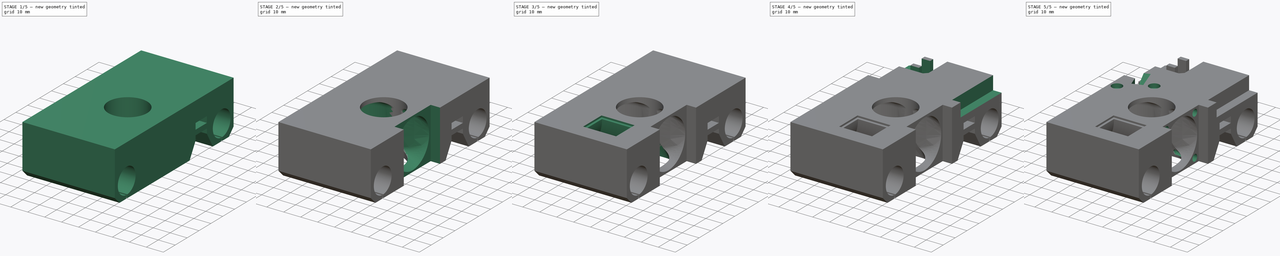
[diagram: build sequence overview — one tinted view per stage of 5, left to right]
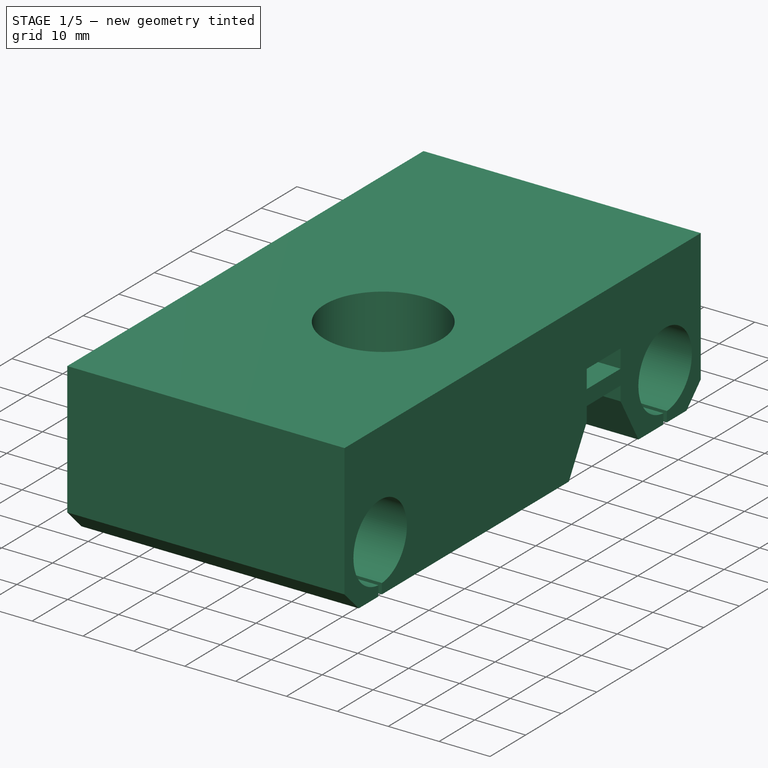
[diagram: stage 1 of 5 — iso view after this stage's code; geometry added in this stage tinted green]
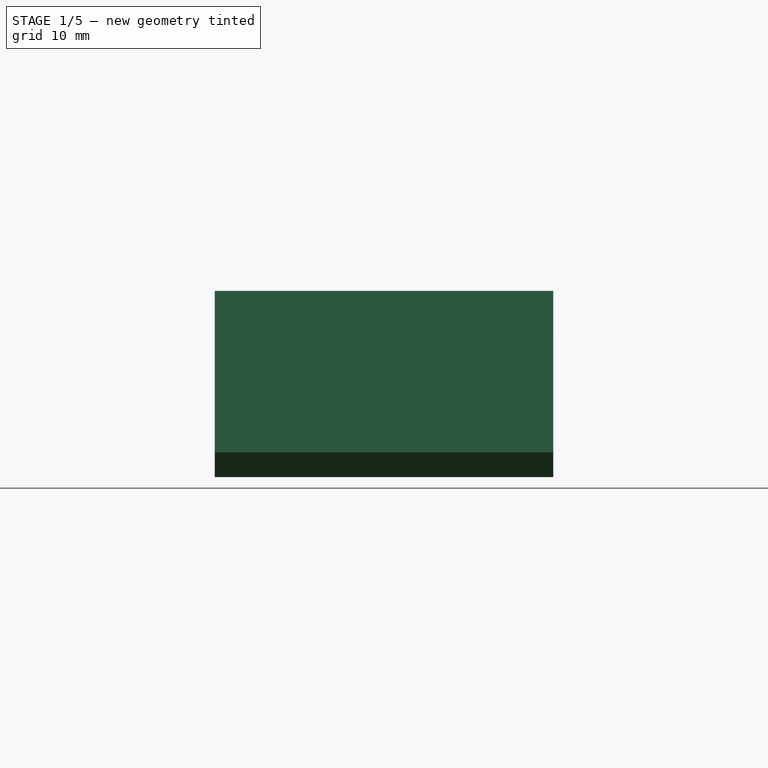
[diagram: stage 1 of 5 — front view after this stage's code; geometry added in this stage tinted green]
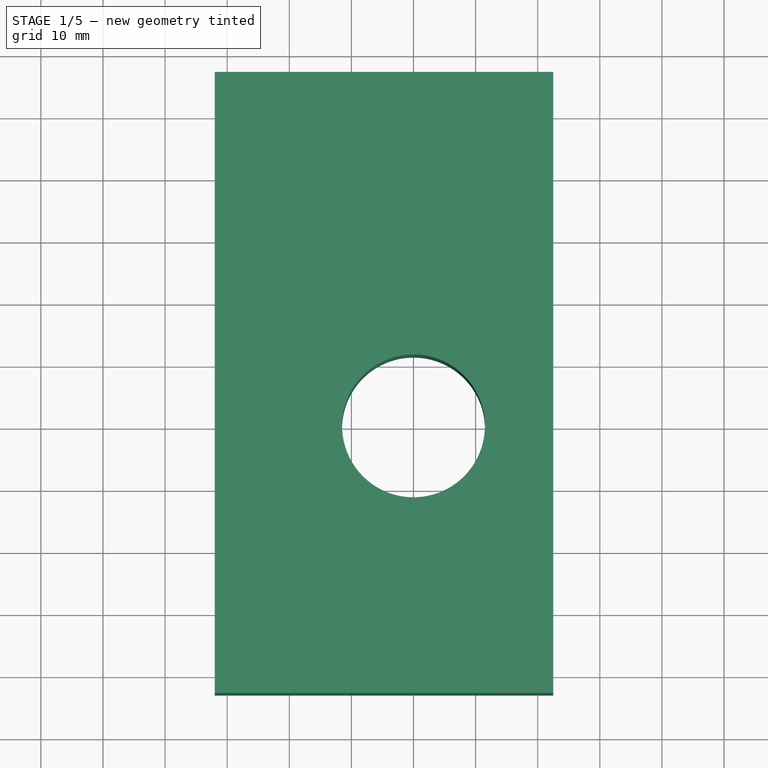
[diagram: stage 1 of 5 — top view after this stage's code; geometry added in this stage tinted green]
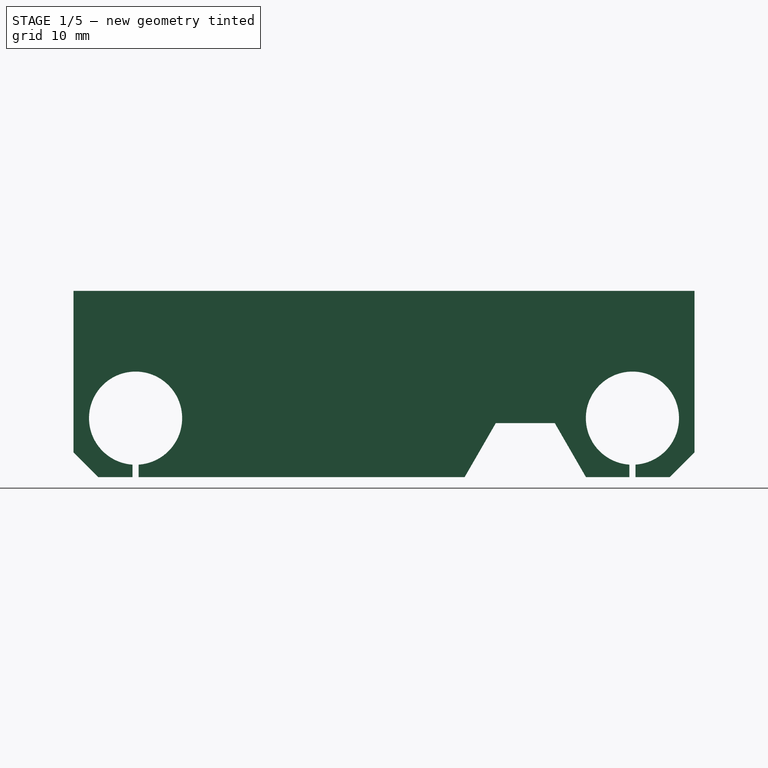
[diagram: stage 1 of 5 — right view after this stage's code; geometry added in this stage tinted green]
FCSTD DOCUMENT  (FreeCAD 0.20R29410 (Git))
Label: _DDExtruder
License: Creative Commons Attribution
LicenseURL: http://creativecommons.org/licenses/by/4.0/
objects: Part::Feature×33, Sketcher::SketchObject×24, PartDesign::Pocket×9, App::Part×3, PartDesign::SubtractiveLoft×2, PartDesign::SubtractivePipe×2, PartDesign::Hole×2, PartDesign::Pad×1, PartDesign::Plane×1, PartDesign::Body×1
note: 91 computed .brp shape members not serialized (recipe doc carries the construction recipe); baked Part::Feature solids carry a one-line shape summary decoded from their .brp

FEATURE [Part::Feature] Compound002  label="micro_switch_5A_125V_250V~10T85u"
  Placement = pos=(-24.6,49.35,-4.8) rot=(0,0,1;0rad)
  shape: bbox 24.69 x 20.93 x 6.4 mm, 78 faces, 4 solids (baked)
FEATURE [Part::Feature] Compound003  label="LM8LUU_001"
  Placement = pos=(5e-15,-33,-20.5) rot=(0,-1,0;1.5708rad)
  shape: bbox 45 x 15 x 15 mm, 36 faces, 2 solids (baked)
FEATURE [Part::Feature] Compound004  label="LM8LUU_002"
  Placement = pos=(5e-15,47,-20.5) rot=(0,-1,0;1.5708rad)
  shape: bbox 45 x 15 x 15 mm, 36 faces, 2 solids (baked)
FEATURE [Part::Feature] Part__Feature  label="Heatsink"
  Placement = pos=(0,1e-15,3e-15) rot=(0,1,0;3.14159rad)
  shape: bbox 24.14 x 42.7 x 24.14 mm, 120 faces (baked)
FEATURE [Part::Feature] Part__Feature001  label="Nozzle"
  Placement = pos=(-4e-15,-50.1,2.2e-14) rot=(0,-1,0;1.5708rad)
  shape: bbox 7 x 12.5 x 8.052 mm, 80 faces (baked)
FEATURE [Part::Feature] Part__Feature002  label="HeaterBlock"
  Placement = pos=(-8,-50.35,3.5) rot=(0,1,0;1.5708rad)
  shape: bbox 16 x 11.5 x 23 mm, 210 faces (baked)
FEATURE [Part::Feature] Part__Feature003  label="HeatBreak"
  Placement = pos=(2e-15,-27.6,2.4e-14) rot=(0,1,0;3.14159rad)
  shape: bbox 7 x 22.1 x 7 mm, 15 faces (baked)
FEATURE [App::Part] Assembly  label="E3D_V6_HotEnd"
  Group = -> [Part__Feature,Part__Feature001,Part__Feature002,Part__Feature003]
  Origin = -> Origin001
  Placement = pos=(0,0,12.8) rot=(-0.57735,0.57735,0.57735;4.18879rad)
FEATURE [Part::Feature] Compound005  label="5015_centrifugal-fan"
  Placement = pos=(-9.6,-18.5331,-0.912754) rot=(1,0,0;1.5708rad)
  shape: bbox 51.3 x 14.8 x 51.05 mm, 225 faces, 2 solids (baked)
FEATURE [Part::Feature] Fusion001  label="3DTouch-sensor"
  Placement = pos=(-20.3192,15.4264,-5) rot=(0.953717,0.300706,0;3.14159rad)
  shape: bbox 22.76 x 18.43 x 41.01 mm, 169 faces, 3 solids (baked)
FEATURE [Part::Feature] Body001  label="AluSled"
  Placement = pos=(0,7,-20.5) rot=(0,0,1;0rad)
  shape: bbox 45 x 100 x 19 mm, 64 faces (baked)
FEATURE [Part::Feature] Compound007  label="PC4-M6C"
  shape: bbox 9.251 x 15.08 x 9.251 mm, 172 faces, 6 solids (baked)
FEATURE [Part::Feature] Compound008  label="thumbscrew assembly"
  shape: bbox 22.01 x 10.01 x 10.01 mm, 295 faces, 3 solids (baked)
FEATURE [Part::Feature] Part__Feature004  label="Case Back"
  Placement = pos=(-2e-15,4.82512e-06,-33) rot=(0,0,1;0rad)
  shape: bbox 42.01 x 54.05 x 22.41 mm, 195 faces (baked)
FEATURE [Part::Feature] Part__Feature005  label="Case Front"
  Placement = pos=(0,0,0) rot=(0,1,0;3.14159rad)
  shape: bbox 42.01 x 54.01 x 21.01 mm, 233 faces (baked)
FEATURE [Part::Feature] Part__Feature006  label="Arm"
  Placement = pos=(42.8457,17.2686,-24.5) rot=(-0.016711,-0.999721,-0.016711;1.57108rad)
  shape: bbox 18.91 x 55.23 x 20.01 mm, 114 faces (baked)
FEATURE [Part::Feature] Part__Feature007  label="M3x30 shaft"
  Placement = pos=(36,22,-16.3) rot=(0,0,1;0rad)
  shape: bbox 3 x 3 x 30 mm, 5 faces (baked)
FEATURE [Part::Feature] Part__Feature008  label="M3x20 shaft"
  Placement = pos=(29.5219,37.7253,-14.5) rot=(0,0,-1;0.033428rad)
  shape: bbox 3 x 3 x 20 mm, 5 faces (baked)
FEATURE [Part::Feature] Part__Feature009  label="3x5x7 needle bearing_001"
  Placement = pos=(29.5219,37.7253,-11) rot=(0,0,-1;0.00091rad)
  shape: bbox 5.195 x 5.195 x 7 mm, 80 faces, 9 solids (baked)
FEATURE [Part::Feature] Part__Feature010  label="3x5x7 needle bearing_002"
  Placement = pos=(29.5219,37.7253,-18) rot=(0,0,-1;0.00091rad)
  shape: bbox 5.195 x 5.195 x 7 mm, 80 faces, 9 solids (baked)
FEATURE [Part::Feature] Part__Feature011  label="filament gear-driven"
  Placement = pos=(21.0238,37.5488,-21.5) rot=(0.999892,0.010383,0.010383;1.5709rad)
  shape: bbox 9.853 x 9.855 x 14 mm, 292 faces (baked)
FEATURE [Part::Feature] Part__Feature012  label="5x8x2.5 MR58(zz) ball bearing_001"
  Placement = pos=(21,37.7,-5.25) rot=(0,-1,0;1.5708rad)
  shape: bbox 8.664 x 8.664 x 2.505 mm, 149 faces, 13 solids (baked)
FEATURE [Part::Feature] Part__Feature013  label="5x8x2.5 MR58(zz) ball bearing_002"
  Placement = pos=(21,37.7,-31.15) rot=(0,-1,0;1.5708rad)
  shape: bbox 8.664 x 8.664 x 2.505 mm, 149 faces, 13 solids (baked)
FEATURE [Part::Feature] Part__Feature014  label="Drive Gear & Shaft"
  Placement = pos=(21,37.7,-29.4) rot=(0.999938,-0.007899,-0.007899;1.57086rad)
  shape: bbox 26.33 x 26.33 x 28.27 mm, 809 faces, 2 solids (baked)
FEATURE [Part::Feature] Part__Feature015  label="Filament Gear-driver"
  Placement = pos=(12.5011,37.8343,-21.5) rot=(0.999938,-0.007899,-0.007899;1.57086rad)
  shape: bbox 9.85 x 9.876 x 14.01 mm, 344 faces, 2 solids (baked)
FEATURE [Part::Feature] Part__Feature016  label="Motor Gear"
  Placement = pos=(21.0565,21.0565,-34.5) rot=(-0.524213,0.602163,0.602163;4.10725rad)
  shape: bbox 12.92 x 12.92 x 13.02 mm, 308 faces, 2 solids (baked)
FEATURE [Part::Feature] Part__Feature017  label="M3x8x5 threaded insert"
  Placement = pos=(34,49.5,-14.5) rot=(0,0,-1;1.5708rad)
  shape: bbox 8.322 x 4.987 x 4.987 mm, 281 faces (baked)
FEATURE [Part::Feature] Part__Feature018  label="M3x35 cap head screw_001"
  Placement = pos=(5.5,5.5,-4) rot=(1,0,0;1.5708rad)
  shape: bbox 5.504 x 5.504 x 38 mm, 80 faces (baked)
FEATURE [Part::Feature] Part__Feature019  label="M3x35 cap head screw_002"
  Placement = pos=(5.5,36.5,-4) rot=(1,0,0;1.5708rad)
  shape: bbox 5.504 x 5.504 x 38 mm, 80 faces (baked)
FEATURE [Part::Feature] Part__Feature020  label="M3x35 cap head screw_003"
  Placement = pos=(36.5,5.5,-4) rot=(1,0,0;1.5708rad)
  shape: bbox 5.504 x 5.504 x 38 mm, 80 faces (baked)
FEATURE [App::Part] Part001  label="BMG Extruder"
  Group = -> [Part__Feature004,Part__Feature005,Part__Feature006,Part__Feature007,Part__Feature008,Part__Feature009,Part__Feature010,Part__Feature011,Part__Feature012,Part__Feature013,Part__Feature014,Part__Feature015,Part__Feature016,Part__Feature017,Part__Feature018,Part__Feature019,Part__Feature020,Compound007,Compound008]
  Origin = -> Origin002
  Placement = pos=(-25,-10.5,-2.3e-15) rot=(1,0,0;1.5708rad)
FEATURE [Part::Feature] Body001002  label="Boundaries"
  Placement = pos=(0,7,-20.5) rot=(0,0,1;0rad)
  shape: bbox 101.5 x 135 x 98.5 mm, 47 faces (baked)
FEATURE [Sketcher::SketchObject] Sketch
  FullyConstrained = true
  MapMode = 5
  Placement = pos=(0,0,0) rot=(0.57735,0.57735,0.57735;2.0944rad)
  Support = -> [YZ_Plane003]
  sketch-geometry (22):
    g0: ArcOfCircle CenterX=-33 CenterY=-20.5 CenterZ=0 NormalX=0 NormalY=0 NormalZ=1 AngleXU=0 Radius=7.5 StartAngle=4.77911 EndAngle=10.9289
    g1: ArcOfCircle CenterX=47 CenterY=-20.5 CenterZ=0 NormalX=0 NormalY=0 NormalZ=1 AngleXU=0 Radius=7.5 StartAngle=4.77911 EndAngle=10.9289
    g2: LineSegment StartX=-39 StartY=-30 StartZ=0 EndX=-33.5 EndY=-30 EndZ=0
    g3: LineSegment StartX=19.9771 StartY=-30 StartZ=0 EndX=25 EndY=-21.3 EndZ=0
    g4: LineSegment StartX=25 StartY=-21.3 StartZ=0 EndX=34.5 EndY=-21.3 EndZ=0
    g5: LineSegment StartX=34.5 StartY=-21.3 StartZ=0 EndX=39.5229 EndY=-30 EndZ=0
    g6: LineSegment StartX=39.5229 StartY=-30 StartZ=0 EndX=46.5 EndY=-30 EndZ=0
    g7: LineSegment StartX=57 StartY=-26 StartZ=0 EndX=57 EndY=0 EndZ=0
    g8: LineSegment StartX=57 StartY=0 StartZ=0 EndX=-43 EndY=0 EndZ=0
    g9: LineSegment StartX=-43 StartY=0 StartZ=0 EndX=-43 EndY=-26 EndZ=0
    g10: LineSegment StartX=-33.5 StartY=-30 StartZ=0 EndX=-33.5 EndY=-27.9833 EndZ=0
    g11: LineSegment StartX=-32.5 StartY=-27.9833 StartZ=0 EndX=-32.5 EndY=-30 EndZ=0
    g12: LineSegment StartX=-33 StartY=-20.5 StartZ=0 EndX=-33 EndY=-30 EndZ=0
    g13: LineSegment StartX=-32.5 StartY=-30 StartZ=0 EndX=19.9771 EndY=-30 EndZ=0
    g14: LineSegment StartX=-33.5 StartY=-30 StartZ=0 EndX=-32.5 EndY=-30 EndZ=0
    g15: LineSegment StartX=47 StartY=-20.5 StartZ=0 EndX=47 EndY=-30 EndZ=0
    g16: LineSegment StartX=46.5 StartY=-27.9833 StartZ=0 EndX=46.5 EndY=-30 EndZ=0
    g17: LineSegment StartX=47.5 StartY=-27.9833 StartZ=0 EndX=47.5 EndY=-30 EndZ=0
    g18: LineSegment StartX=47.5 StartY=-30 StartZ=0 EndX=53 EndY=-30 EndZ=0
    g19: LineSegment StartX=46.5 StartY=-30 StartZ=0 EndX=47.5 EndY=-30 EndZ=0
    g20: LineSegment StartX=-43 StartY=-26 StartZ=0 EndX=-39 EndY=-30 EndZ=0
    g21: LineSegment StartX=53 StartY=-30 StartZ=0 EndX=57 EndY=-26 EndZ=0
  constraints (64):
    c: Horizontal(g0,g1)
    c: Equal(g1,g0)
    c: DistanceX(g0,g1) = 80
    c: Diameter(g1) = 15
    c: DistanceX(g0,g-1) = 33
    c: DistanceY(g0,g-1) = 20.5
    c: Horizontal(g2)
    c: Coincident(g13,g3)
    c: Coincident(g3,g4)
    c: Horizontal(g4)
    c: Coincident(g4,g5)
    c: Coincident(g5,g6)
    c: Horizontal(g6)
    c: Vertical(g7)
    c: PointOnObject(g8,g-1)
    c: PointOnObject(g8,g-1)
    c: Vertical(g9)
    c: Coincident(g9,g8)
    c: Coincident(g8,g7)
    c: Horizontal(g13,g5)
    c: DistanceY(g4,g7) = 21.3
    c: DistanceX(g4,g4) = 9.5
    c: Angle(g4,g5) = 2.0944
    c: DistanceX(g-1,g3) = 25
    c: Angle(g3,g2) = 2.0944
    c: Vertical(g10)
    c: Vertical(g11)
    c: Coincident(g12,g0)
    c: Vertical(g12)
    c: Coincident(g0,g10)
    c: Coincident(g0,g11)
    c: Coincident(g13,g11)
    c: Coincident(g2,g10)
    c: Symmetric(g2,g11,g12)
    c: Coincident(g14,g2)
    c: Coincident(g14,g11)
    c: DistanceX(g14,g14) = 1
    c: Horizontal(g13)
    c: Coincident(g15,g1)
    c: Vertical(g15)
    c: Vertical(g16)
    c: Vertical(g17)
    c: Coincident(g1,g17)
    c: Coincident(g1,g16)
    c: Coincident(g6,g16)
    c: Coincident(g19,g6)
    c: Coincident(g19,g17)
    c: Symmetric(g17,g6,g15)
    c: Equal(g19,g14)
    c: Horizontal(g18)
    c: Coincident(g18,g17)
    c: PointOnObject(g15,g19)
    c: PointOnObject(g12,g14)
    c: Coincident(g2,g20)
    c: Coincident(g9,g20)
    c: DistanceY(g2,g8) = 30
    c: DistanceX(g9,g-1) = 43
    c: Angle(g2,g20) = 2.35619
    c: DistanceY(g2,g9) = 4
    c: Coincident(g18,g21)
    c: Coincident(g7,g21)
    c: DistanceX(g-1,g7) = 57
    c: Perpendicular(g21,g20)
    c: Equal(g20,g21)
FEATURE [Part::Feature] Part__Feature001001  label="3010_Fan"
  Placement = pos=(17,-6e-15,-15) rot=(0.707107,0,-0.707107;3.14159rad)
  shape: bbox 14.39 x 34.2 x 33.61 mm, 46 faces (baked)
FEATURE [PartDesign::Pad] Pad
  Direction = (1,-2e-16,3e-16)
  Length = 22.5
  Length2 = 32
  Midplane = true
  Placement = pos=(0,0,0) rot=(0.57735,0.57735,0.57735;2.0944rad)
  Profile = -> Sketch
  ReferenceAxis = -> Sketch [N_Axis]
  Type = 4
FEATURE [Part::Feature] Carriage001001001  label="TitanCarriage"
  Placement = pos=(1e-15,3.9,-49.6) rot=(0,0,-1;1.5708rad)
  shape: bbox 52 x 108.2 x 70.6 mm, 38291 faces, 0 solids (baked)
FEATURE [Sketcher::SketchObject] Sketch001
  FullyConstrained = true
  MapMode = 5
  Support = -> [XY_Plane003]
  sketch-geometry (1):
    g0: Circle CenterX=0 CenterY=0 CenterZ=0 NormalX=0 NormalY=0 NormalZ=1 AngleXU=0 Radius=11.5
  constraints (2):
    c: Diameter(g0) = 23
    c: Coincident(g0,g-1)
FEATURE [Sketcher::SketchObject] Sketch002
  AttachmentOffset = pos=(0,0,27) rot=(0,0,1;0rad)
  FullyConstrained = true
  MapMode = 5
  Placement = pos=(27,-6e-15,6e-15) rot=(0.57735,0.57735,0.57735;2.0944rad)
  Support = -> [YZ_Plane003]
  sketch-geometry (4):
    g0: LineSegment StartX=-15.25 StartY=0 StartZ=0 EndX=15.25 EndY=0 EndZ=0
    g1: LineSegment StartX=15.25 StartY=0 StartZ=0 EndX=15.25 EndY=-31 EndZ=0
    g2: LineSegment StartX=15.25 StartY=-31 StartZ=0 EndX=-15.25 EndY=-31 EndZ=0
    g3: LineSegment StartX=-15.25 StartY=-31 StartZ=0 EndX=-15.25 EndY=0 EndZ=0
  constraints (11):
    c: Coincident(g0,g1)
    c: Coincident(g1,g2)
    c: Coincident(g2,g3)
    c: Coincident(g3,g0)
    c: Horizontal(g0)
    c: Vertical(g1)
    c: Vertical(g3)
    c: PointOnObject(g-1,g0)
    c: DistanceY(g3,g3) = 31
    c: Symmetric(g2,g1,g-2)
    c: DistanceX(g2,g2) = 30.5
FEATURE [Sketcher::SketchObject] Sketch003
  AttachmentOffset = pos=(0,0,17.02) rot=(0,0,1;0rad)
  FullyConstrained = true
  MapMode = 5
  Placement = pos=(17.02,-3.8e-15,3.8e-15) rot=(0.57735,0.57735,0.57735;2.0944rad)
  Support = -> [YZ_Plane003]
  sketch-geometry (12):
    g0: ArcOfCircle CenterX=0 CenterY=-15 CenterZ=0 NormalX=0 NormalY=0 NormalZ=1 AngleXU=0 Radius=14 StartAngle=2.00713 EndAngle=2.79253
    g1: ArcOfCircle CenterX=0 CenterY=-15 CenterZ=0 NormalX=0 NormalY=0 NormalZ=1 AngleXU=0 Radius=14 StartAngle=0.436332 EndAngle=1.22173
    g2: ArcOfCircle CenterX=0 CenterY=-15 CenterZ=0 NormalX=0 NormalY=0 NormalZ=1 AngleXU=0 Radius=14 StartAngle=5.14872 EndAngle=5.93412
    g3: ArcOfCircle CenterX=0 CenterY=-15 CenterZ=0 NormalX=0 NormalY=0 NormalZ=1 AngleXU=0 Radius=14 StartAngle=3.57792 EndAngle=4.36332
    g4: ArcOfCircle CenterX=0 CenterY=-15 CenterZ=0 NormalX=0 NormalY=0 NormalZ=1 AngleXU=0 Radius=14 StartAngle=2.79253 EndAngle=3.57792
    g5: ArcOfCircle CenterX=0 CenterY=-15 CenterZ=0 NormalX=0 NormalY=0 NormalZ=1 AngleXU=0 Radius=14 StartAngle=1.22173 EndAngle=2.00713
    g6: ArcOfCircle CenterX=0 CenterY=-15 CenterZ=0 NormalX=0 NormalY=0 NormalZ=1 AngleXU=0 Radius=14 StartAngle=5.93412 EndAngle=6.71952
    g7: ArcOfCircle CenterX=0 CenterY=-15 CenterZ=0 NormalX=0 NormalY=0 NormalZ=1 AngleXU=0 Radius=14 StartAngle=4.36332 EndAngle=5.14872
    g8: LineSegment StartX=-13.1557 StartY=-10.2117 StartZ=0 EndX=13.1557 EndY=-19.7883 EndZ=0
    g9: LineSegment StartX=5.91666 StartY=-27.6883 StartZ=0 EndX=-5.91666 EndY=-2.31169 EndZ=0
    g10: LineSegment StartX=-12.6883 StartY=-20.9167 StartZ=0 EndX=12.6883 EndY=-9.08334 EndZ=0
    g11: LineSegment StartX=-4.78828 StartY=-28.1557 StartZ=0 EndX=4.78828 EndY=-1.8443 EndZ=0
  constraints (34):
    c: Coincident(g1,g0)
    c: Coincident(g2,g0)
    c: Coincident(g3,g0)
    c: Coincident(g4,g0)
    c: Coincident(g4,g3)
    c: Coincident(g4,g0)
    c: Coincident(g5,g0)
    c: Coincident(g5,g0)
    c: Coincident(g5,g1)
    c: Coincident(g6,g0)
    c: Coincident(g6,g1)
    c: Coincident(g6,g2)
    c: Coincident(g7,g0)
    c: Coincident(g7,g3)
    c: Coincident(g8,g0)
    c: Coincident(g8,g2)
    c: Coincident(g9,g2)
    c: Coincident(g9,g0)
    c: Coincident(g10,g3)
    c: Coincident(g10,g1)
    c: Coincident(g11,g3)
    c: Coincident(g11,g1)
    c: PointOnObject(g0,g10)
    c: PointOnObject(g0,g11)
    c: PointOnObject(g0,g9)
    c: PointOnObject(g0,g8)
    c: Angle(g2) = 0.785398
    c: Angle(g6) = 0.785398
    c: Angle(g1) = 0.785398
    c: PointOnObject(g0,g-2)
    c: DistanceY(g0,g-1) = 15
    c: Diameter(g1) = 28
    c: PointOnObject(g7,g9)
    c: Angle(g9,g-2) = 2.70526
FEATURE [Sketcher::SketchObject] Sketch004
  AttachmentOffset = pos=(0,0,7) rot=(0,0,1;0rad)
  FullyConstrained = true
  MapMode = 5
  Placement = pos=(7,-1.6e-15,1.6e-15) rot=(0.57735,0.57735,0.57735;2.0944rad)
  Support = -> [YZ_Plane003]
  sketch-geometry (11):
    g0: ArcOfCircle CenterX=-7.5 CenterY=-6.5 CenterZ=0 NormalX=0 NormalY=0 NormalZ=1 AngleXU=0 Radius=4 StartAngle=1.5708 EndAngle=3.14159
    g1: LineSegment StartX=-7.5 StartY=-2.5 StartZ=0 EndX=7.5 EndY=-2.5 EndZ=0
    g2: ArcOfCircle CenterX=7.5 CenterY=-6.5 CenterZ=0 NormalX=0 NormalY=0 NormalZ=1 AngleXU=0 Radius=4 StartAngle=1e-16 EndAngle=1.5708
    g3: LineSegment StartX=11.5 StartY=-6.5 StartZ=0 EndX=11.5 EndY=-23.5 EndZ=0
    g4: ArcOfCircle CenterX=7.5 CenterY=-23.5 CenterZ=0 NormalX=0 NormalY=0 NormalZ=1 AngleXU=0 Radius=4 StartAngle=4.71239 EndAngle=6.28319
    g5: LineSegment StartX=7.5 StartY=-27.5 StartZ=0 EndX=-7.5 EndY=-27.5 EndZ=0
    g6: ArcOfCircle CenterX=-7.5 CenterY=-23.5 CenterZ=0 NormalX=0 NormalY=0 NormalZ=1 AngleXU=0 Radius=4 StartAngle=3.14159 EndAngle=4.71239
    g7: LineSegment StartX=-11.5 StartY=-23.5 StartZ=0 EndX=-11.5 EndY=-6.5 EndZ=0
    g8: GeomPoint X=-11.5 Y=-2.5 Z=0
    g9: GeomPoint X=11.5 Y=-27.5 Z=0
    g10: GeomPoint X=0 Y=-15 Z=0
  constraints (25):
    c: Tangent(g0,g1) = 1.5708
    c: Tangent(g1,g2) = 1.5708
    c: Tangent(g2,g3) = 1.5708
    c: Tangent(g3,g4) = 1.5708
    c: Tangent(g4,g5) = 1.5708
    c: Tangent(g5,g6) = 1.5708
    c: Tangent(g6,g7) = 1.5708
    c: Tangent(g7,g0) = 1.5708
    c: Horizontal(g1)
    c: Horizontal(g5)
    c: Vertical(g3)
    c: Vertical(g7)
    c: Equal(g2,g4)
    c: PointOnObject(g8,g1)
    c: PointOnObject(g8,g7)
    c: PointOnObject(g9,g3)
    c: PointOnObject(g9,g5)
    c: DistanceY(g5,g0) = 25
    c: DistanceX(g6,g3) = 23
    c: PointOnObject(g10,g-2)
    c: Symmetric(g2,g6,g10)
    c: DistanceY(g10,g-1) = 15
    c: Radius(g4) = 4
    c: Equal(g4,g6)
    c: Equal(g6,g0)
FEATURE [Sketcher::SketchObject] Sketch005
  AttachmentOffset = pos=(0,0,-7) rot=(0,0,1;0rad)
  FullyConstrained = true
  MapMode = 5
  Placement = pos=(-7,1.6e-15,-1.6e-15) rot=(0.57735,0.57735,0.57735;2.0944rad)
  Support = -> [YZ_Plane003]
  expr: Constraints[17] = Sketch004.Constraints[17]
  expr: Constraints[18] = Sketch004.Constraints[18]
  expr: Constraints[21] = Sketch004.Constraints[21]
  expr: Constraints[22] = Sketch004.Constraints[22]
  sketch-geometry (11):
    g0: ArcOfCircle CenterX=-7.5 CenterY=-6.5 CenterZ=0 NormalX=0 NormalY=0 NormalZ=1 AngleXU=0 Radius=4 StartAngle=1.5708 EndAngle=3.14159
    g1: LineSegment StartX=-7.5 StartY=-2.5 StartZ=0 EndX=7.5 EndY=-2.5 EndZ=0
    g2: ArcOfCircle CenterX=7.5 CenterY=-6.5 CenterZ=0 NormalX=0 NormalY=0 NormalZ=1 AngleXU=0 Radius=4 StartAngle=1e-16 EndAngle=1.5708
    g3: LineSegment StartX=11.5 StartY=-6.5 StartZ=0 EndX=11.5 EndY=-23.5 EndZ=0
    g4: ArcOfCircle CenterX=7.5 CenterY=-23.5 CenterZ=0 NormalX=0 NormalY=0 NormalZ=1 AngleXU=0 Radius=4 StartAngle=4.71239 EndAngle=6.28319
    g5: LineSegment StartX=7.5 StartY=-27.5 StartZ=0 EndX=-7.5 EndY=-27.5 EndZ=0
    g6: ArcOfCircle CenterX=-7.5 CenterY=-23.5 CenterZ=0 NormalX=0 NormalY=0 NormalZ=1 AngleXU=0 Radius=4 StartAngle=3.14159 EndAngle=4.71239
    g7: LineSegment StartX=-11.5 StartY=-23.5 StartZ=0 EndX=-11.5 EndY=-6.5 EndZ=0
    g8: GeomPoint X=-11.5 Y=-2.5 Z=0
    g9: GeomPoint X=11.5 Y=-27.5 Z=0
    g10: GeomPoint X=0 Y=-15 Z=0
  constraints (25):
    c: Tangent(g0,g1) = 1.5708
    c: Tangent(g1,g2) = 1.5708
    c: Tangent(g2,g3) = 1.5708
    c: Tangent(g3,g4) = 1.5708
    c: Tangent(g4,g5) = 1.5708
    c: Tangent(g5,g6) = 1.5708
    c: Tangent(g6,g7) = 1.5708
    c: Tangent(g7,g0) = 1.5708
    c: Horizontal(g1)
    c: Horizontal(g5)
    c: Vertical(g3)
    c: Vertical(g7)
    c: Equal(g2,g4)
    c: PointOnObject(g8,g1)
    c: PointOnObject(g8,g7)
    c: PointOnObject(g9,g3)
    c: PointOnObject(g9,g5)
    c: DistanceY(g5,g0) = 25
    c: DistanceX(g6,g3) = 23
    c: PointOnObject(g10,g-2)
    c: Symmetric(g2,g6,g10)
    c: DistanceY(g10,g-1) = 15
    c: Radius(g4) = 4
    c: Equal(g4,g6)
    c: Equal(g6,g0)
FEATURE [Sketcher::SketchObject] Sketch006
  AttachmentOffset = pos=(0,0,-7) rot=(0,0,1;0rad)
  FullyConstrained = true
  MapMode = 5
  Placement = pos=(-7,1.6e-15,-1.6e-15) rot=(0.57735,0.57735,0.57735;2.0944rad)
  Support = -> [YZ_Plane003]
  expr: Constraints[17] = Sketch004.Constraints[17]
  expr: Constraints[18] = Sketch004.Constraints[18]
  expr: Constraints[20] = Sketch004.Constraints[21]
  expr: Constraints[21] = Sketch004.Constraints[22]
  sketch-geometry (11):
    g0: ArcOfCircle CenterX=-7.5 CenterY=-6.5 CenterZ=0 NormalX=0 NormalY=0 NormalZ=1 AngleXU=0 Radius=4 StartAngle=1.5708 EndAngle=3.14159
    g1: LineSegment StartX=-7.5 StartY=-2.5 StartZ=0 EndX=7.5 EndY=-2.5 EndZ=0
    g2: ArcOfCircle CenterX=7.5 CenterY=-6.5 CenterZ=0 NormalX=0 NormalY=0 NormalZ=1 AngleXU=0 Radius=4 StartAngle=-1.2478e-11 EndAngle=1.5708
    g3: LineSegment StartX=11.5 StartY=-6.5 StartZ=0 EndX=11.5 EndY=-23.5 EndZ=0
    g4: ArcOfCircle CenterX=7.5 CenterY=-23.5 CenterZ=0 NormalX=0 NormalY=0 NormalZ=1 AngleXU=0 Radius=4 StartAngle=4.71239 EndAngle=6.28319
    g5: LineSegment StartX=7.5 StartY=-27.5 StartZ=0 EndX=-7.5 EndY=-27.5 EndZ=0
    g6: ArcOfCircle CenterX=-7.5 CenterY=-23.5 CenterZ=0 NormalX=0 NormalY=0 NormalZ=1 AngleXU=0 Radius=4 StartAngle=3.14159 EndAngle=4.71239
    g7: LineSegment StartX=-11.5 StartY=-23.5 StartZ=0 EndX=-11.5 EndY=-6.5 EndZ=0
    g8: GeomPoint X=-11.5 Y=-2.5 Z=0
    g9: GeomPoint X=11.5 Y=-27.5 Z=0
    g10: GeomPoint X=0 Y=-15 Z=0
  constraints (25):
    c: Tangent(g0,g1) = 1.5708
    c: Tangent(g1,g2) = 1.5708
    c: Tangent(g2,g3) = 1.5708
    c: Tangent(g3,g4) = 1.5708
    c: Tangent(g4,g5) = 1.5708
    c: Tangent(g5,g6) = 1.5708
    c: Tangent(g6,g7) = 1.5708
    c: Tangent(g7,g0) = 1.5708
    c: Horizontal(g1)
    c: Horizontal(g5)
    c: Vertical(g3)
    c: Vertical(g7)
    c: Equal(g2,g4)
    c: PointOnObject(g8,g1)
    c: PointOnObject(g8,g7)
    c: PointOnObject(g9,g3)
    c: PointOnObject(g9,g5)
    c: DistanceY(g5,g0) = 25
    c: DistanceX(g6,g3) = 23
    c: Symmetric(g2,g6,g10)
    c: DistanceY(g10,g-1) = 15
    c: Radius(g4) = 4
    c: Equal(g4,g6)
    c: Equal(g6,g0)
    c: PointOnObject(g10,g-2)
FEATURE [Sketcher::SketchObject] Sketch007
  FullyConstrained = true
  MapMode = 5
  Support = -> [XY_Plane003]
  sketch-geometry (2):
    g0: ArcOfCircle CenterX=-7 CenterY=-21.1829 CenterZ=0 NormalX=0 NormalY=0 NormalZ=1 AngleXU=0 Radius=21.1829 StartAngle=1.5708 EndAngle=2.11681
    g1: ArcOfCircle CenterX=-32 CenterY=19.96 CenterZ=0 NormalX=0 NormalY=0 NormalZ=1 AngleXU=0 Radius=26.96 StartAngle=4.71239 EndAngle=5.25841
  constraints (8):
    c: DistanceX(g0,g-1) = 7
    c: DistanceX(g1,g-1) = 32
    c: Tangent(g0,g1) = 1.5708
    c: PointOnObject(g0,g-1)
    c: Vertical(g0,g0)
    c: DistanceY(g1,g-1) = 7
    c: DistanceX(g0,g-1) = 18
    c: Vertical(g1,g1)
FEATURE [Sketcher::SketchObject] Sketch008
  AttachmentOffset = pos=(0,0,-20) rot=(0,0,1;0rad)
  FullyConstrained = true
  MapMode = 5
  Placement = pos=(0,0,-20) rot=(0,0,1;0rad)
  Support = -> [XY_Plane003]
  sketch-geometry (12):
    g0: LineSegment StartX=-4.40086 StartY=10.6246 StartZ=0 EndX=4.40086 EndY=-10.6246 EndZ=0
    g1: LineSegment StartX=-10.6246 StartY=4.40086 StartZ=0 EndX=10.6246 EndY=-4.40086 EndZ=0
    g2: LineSegment StartX=4.40086 StartY=10.6246 StartZ=0 EndX=-4.40086 EndY=-10.6246 EndZ=0
    g3: LineSegment StartX=10.6246 StartY=4.40086 StartZ=0 EndX=-10.6246 EndY=-4.40086 EndZ=0
    g4: ArcOfCircle CenterX=0 CenterY=0 CenterZ=0 NormalX=0 NormalY=0 NormalZ=1 AngleXU=0 Radius=11.5 StartAngle=0.392699 EndAngle=1.1781
    g5: ArcOfCircle CenterX=0 CenterY=0 CenterZ=0 NormalX=0 NormalY=0 NormalZ=1 AngleXU=0 Radius=11.5 StartAngle=5.89049 EndAngle=6.67588
    g6: ArcOfCircle CenterX=0 CenterY=0 CenterZ=0 NormalX=0 NormalY=0 NormalZ=1 AngleXU=0 Radius=11.5 StartAngle=5.10509 EndAngle=5.89049
    g7: ArcOfCircle CenterX=0 CenterY=0 CenterZ=0 NormalX=0 NormalY=0 NormalZ=1 AngleXU=0 Radius=11.5 StartAngle=4.31969 EndAngle=5.10509
    g8: ArcOfCircle CenterX=0 CenterY=0 CenterZ=0 NormalX=0 NormalY=0 NormalZ=1 AngleXU=0 Radius=11.5 StartAngle=3.53429 EndAngle=4.31969
    g9: ArcOfCircle CenterX=0 CenterY=0 CenterZ=0 NormalX=0 NormalY=0 NormalZ=1 AngleXU=0 Radius=11.5 StartAngle=2.74889 EndAngle=3.53429
    g10: ArcOfCircle CenterX=0 CenterY=0 CenterZ=0 NormalX=0 NormalY=0 NormalZ=1 AngleXU=0 Radius=11.5 StartAngle=1.9635 EndAngle=2.74889
    g11: ArcOfCircle CenterX=0 CenterY=0 CenterZ=0 NormalX=0 NormalY=0 NormalZ=1 AngleXU=0 Radius=11.5 StartAngle=1.1781 EndAngle=1.9635
  constraints (33):
    c: PointOnObject(g-1,g0)
    c: PointOnObject(g-1,g1)
    c: PointOnObject(g-1,g3)
    c: PointOnObject(g-1,g2)
    c: Coincident(g4,g-1)
    c: Coincident(g4,g2)
    c: Coincident(g4,g3)
    c: Coincident(g5,g4)
    c: Coincident(g5,g4)
    c: Coincident(g5,g1)
    c: Coincident(g6,g4)
    c: Coincident(g6,g5)
    c: Coincident(g6,g0)
    c: Coincident(g7,g4)
    c: Coincident(g7,g6)
    c: Coincident(g7,g2)
    c: Coincident(g8,g4)
    c: Coincident(g8,g7)
    c: Coincident(g8,g3)
    c: Coincident(g9,g4)
    c: Coincident(g9,g8)
    c: Coincident(g9,g1)
    c: Coincident(g10,g4)
    c: Coincident(g10,g9)
    c: Coincident(g10,g0)
    c: Coincident(g11,g4)
    c: Coincident(g11,g10)
    c: PointOnObject(g11,g2)
    c: Angle(g5) = 0.785398
    c: Angle(g4) = 0.785398
    c: Angle(g11) = 0.785398
    c: Angle(g2,g-2) = 0.392699
    c: Diameter(g5) = 23
FEATURE [Sketcher::SketchObject] Sketch009
  AttachmentOffset = pos=(0,0,-30) rot=(0,0,1;0rad)
  FullyConstrained = true
  MapMode = 5
  Placement = pos=(0,0,-30) rot=(0,0,1;0rad)
  Support = -> [XY_Plane003]
  sketch-geometry (10):
    g0: ArcOfCircle CenterX=-10 CenterY=6.5 CenterZ=0 NormalX=0 NormalY=0 NormalZ=1 AngleXU=0 Radius=6 StartAngle=1.5708 EndAngle=3.14159
    g1: LineSegment StartX=-10 StartY=12.5 StartZ=0 EndX=7 EndY=12.5 EndZ=0
    g2: ArcOfCircle CenterX=7 CenterY=6.5 CenterZ=0 NormalX=0 NormalY=0 NormalZ=1 AngleXU=0 Radius=6 StartAngle=1e-16 EndAngle=1.5708
    g3: LineSegment StartX=13 StartY=6.5 StartZ=0 EndX=13 EndY=-6.5 EndZ=0
    g4: ArcOfCircle CenterX=7 CenterY=-6.5 CenterZ=0 NormalX=0 NormalY=0 NormalZ=1 AngleXU=0 Radius=6 StartAngle=4.71239 EndAngle=6.28319
    g5: LineSegment StartX=7 StartY=-12.5 StartZ=0 EndX=-10 EndY=-12.5 EndZ=0
    g6: ArcOfCircle CenterX=-10 CenterY=-6.5 CenterZ=0 NormalX=0 NormalY=0 NormalZ=1 AngleXU=0 Radius=6 StartAngle=3.14159 EndAngle=4.71239
    g7: LineSegment StartX=-16 StartY=-6.5 StartZ=0 EndX=-16 EndY=6.5 EndZ=0
    g8: GeomPoint X=-16 Y=12.5 Z=0
    g9: GeomPoint X=13 Y=-12.5 Z=0
  constraints (23):
    c: Tangent(g0,g1) = 1.5708
    c: Tangent(g1,g2) = 1.5708
    c: Tangent(g2,g3) = 1.5708
    c: Tangent(g3,g4) = 1.5708
    c: Tangent(g4,g5) = 1.5708
    c: Tangent(g5,g6) = 1.5708
    c: Tangent(g6,g7) = 1.5708
    c: Tangent(g7,g0) = 1.5708
    c: Horizontal(g1)
    c: Horizontal(g5)
    c: Vertical(g3)
    c: Vertical(g7)
    c: Equal(g0,g2)
    c: Equal(g2,g4)
    c: PointOnObject(g8,g1)
    c: PointOnObject(g8,g7)
    c: PointOnObject(g9,g3)
    c: PointOnObject(g9,g5)
    c: DistanceY(g5,g0) = 25
    c: Radius(g2) = 6
    c: Symmetric(g6,g0,g-1)
    c: DistanceX(g6,g-1) = 16
    c: DistanceX(g-1,g3) = 13
FEATURE [Sketcher::SketchObject] Sketch010
  AttachmentOffset = pos=(0,0,-23) rot=(0,0,1;0rad)
  FullyConstrained = true
  MapMode = 5
  Placement = pos=(0,0,-23) rot=(0,0,1;0rad)
  Support = -> [XY_Plane003]
  sketch-geometry (5):
    g0: LineSegment StartX=-15 StartY=-15.5 StartZ=0 EndX=15 EndY=-15.5 EndZ=0
    g1: LineSegment StartX=15 StartY=-15.5 StartZ=0 EndX=15 EndY=-24.5 EndZ=0
    g2: LineSegment StartX=15 StartY=-24.5 StartZ=0 EndX=-15 EndY=-24.5 EndZ=0
    g3: LineSegment StartX=-15 StartY=-24.5 StartZ=0 EndX=-15 EndY=-15.5 EndZ=0
    g4: GeomPoint X=0 Y=-20 Z=0
  constraints (13):
    c: Coincident(g0,g1)
    c: Coincident(g1,g2)
    c: Coincident(g2,g3)
    c: Coincident(g3,g0)
    c: Horizontal(g0)
    c: Vertical(g1)
    c: Vertical(g3)
    c: DistanceY(g1,g1) = 9
    c: DistanceX(g2,g2) = 30
    c: Symmetric(g2,g0,g4)
    c: PointOnObject(g4,g-2)
    c: DistanceY(g4,g-1) = 20
    c: Horizontal(g2)
FEATURE [Sketcher::SketchObject] Sketch011
  FullyConstrained = true
  MapMode = 5
  Support = -> [XY_Plane003]
  sketch-geometry (5):
    g0: LineSegment StartX=-8.5 StartY=-19.75 StartZ=0 EndX=8.5 EndY=-19.75 EndZ=0
    g1: LineSegment StartX=8.5 StartY=-19.75 StartZ=0 EndX=8.5 EndY=-32.25 EndZ=0
    g2: LineSegment StartX=8.5 StartY=-32.25 StartZ=0 EndX=-8.5 EndY=-32.25 EndZ=0
    g3: LineSegment StartX=-8.5 StartY=-32.25 StartZ=0 EndX=-8.5 EndY=-19.75 EndZ=0
    g4: GeomPoint X=0 Y=-26 Z=0
  constraints (13):
    c: Coincident(g0,g1)
    c: Coincident(g1,g2)
    c: Coincident(g2,g3)
    c: Coincident(g3,g0)
    c: Horizontal(g0)
    c: Horizontal(g2)
    c: Vertical(g1)
    c: Vertical(g3)
    c: Symmetric(g2,g0,g4)
    c: PointOnObject(g4,g-2)
    c: DistanceX(g2,g2) = 17
    c: DistanceY(g3,g3) = 12.5
    c: DistanceY(g4,g-1) = 26
FEATURE [Sketcher::SketchObject] Sketch012
  AttachmentOffset = pos=(0,0,-23) rot=(0,0,1;0rad)
  FullyConstrained = true
  MapMode = 5
  Placement = pos=(0,0,-23) rot=(0,0,1;0rad)
  Support = -> [XY_Plane003]
  expr: Constraints[11] = Sketch010.Constraints[11]
  expr: Constraints[7] = Sketch010.Constraints[7] - 2mm
  expr: Constraints[8] = Sketch010.Constraints[8] - 2mm
  sketch-geometry (5):
    g0: LineSegment StartX=-14 StartY=-16.5 StartZ=0 EndX=14 EndY=-16.5 EndZ=0
    g1: LineSegment StartX=14 StartY=-16.5 StartZ=0 EndX=14 EndY=-23.5 EndZ=0
    g2: LineSegment StartX=14 StartY=-23.5 StartZ=0 EndX=-14 EndY=-23.5 EndZ=0
    g3: LineSegment StartX=-14 StartY=-23.5 StartZ=0 EndX=-14 EndY=-16.5 EndZ=0
    g4: GeomPoint X=0 Y=-20 Z=0
  constraints (13):
    c: Coincident(g0,g1)
    c: Coincident(g1,g2)
    c: Coincident(g2,g3)
    c: Coincident(g3,g0)
    c: Horizontal(g0)
    c: Vertical(g1)
    c: Vertical(g3)
    c: DistanceY(g1,g1) = 7
    c: DistanceX(g2,g2) = 28
    c: Symmetric(g2,g0,g4)
    c: PointOnObject(g4,g-2)
    c: DistanceY(g4,g-1) = 20
    c: Horizontal(g2)
FEATURE [Sketcher::SketchObject] Sketch013
  FullyConstrained = true
  MapMode = 5
  Placement = pos=(0,0,0) rot=(0.57735,0.57735,0.57735;2.0944rad)
  Support = -> [YZ_Plane003]
  expr: Constraints[2] = Sketch010.Constraints[11]
  expr: Constraints[5] = Sketch011.Constraints[12]
  expr: Constraints[7] = Constraints[6] / 2
  sketch-geometry (2):
    g0: ArcOfCircle CenterX=-43.5417 CenterY=-23 CenterZ=0 NormalX=0 NormalY=0 NormalZ=1 AngleXU=0 Radius=23.5417 StartAngle=0 EndAngle=0.510365
    g1: ArcOfCircle CenterX=-2.45833 CenterY=0 CenterZ=0 NormalX=0 NormalY=0 NormalZ=1 AngleXU=0 Radius=23.5417 StartAngle=3.14159 EndAngle=3.65196
  constraints (8):
    c: PointOnObject(g1,g-1)
    c: Tangent(g1,g0) = 1.5708
    c: DistanceX(g0,g-1) = 20
    c: Equal(g1,g0)
    c: Perpendicular(g1,g-1)
    c: DistanceX(g1,g-1) = 26
    c: DistanceY(g0,g-1) = 23
    c: DistanceY(g0,g0) = 11.5
FEATURE [Sketcher::SketchObject] Sketch014
  AttachmentOffset = pos=(0,0,-3) rot=(0,0,1;0rad)
  FullyConstrained = true
  MapMode = 5
  Placement = pos=(0,0,-3) rot=(0,0,1;0rad)
  Support = -> [XY_Plane003]
  expr: Constraints[10] = Sketch011.Constraints[10]
  expr: Constraints[11] = Sketch011.Constraints[11]
  expr: Constraints[12] = Sketch011.Constraints[12]
  sketch-geometry (5):
    g0: LineSegment StartX=-8.5 StartY=-19.75 StartZ=0 EndX=8.5 EndY=-19.75 EndZ=0
    g1: LineSegment StartX=8.5 StartY=-19.75 StartZ=0 EndX=8.5 EndY=-32.25 EndZ=0
    g2: LineSegment StartX=8.5 StartY=-32.25 StartZ=0 EndX=-8.5 EndY=-32.25 EndZ=0
    g3: LineSegment StartX=-8.5 StartY=-32.25 StartZ=0 EndX=-8.5 EndY=-19.75 EndZ=0
    g4: GeomPoint X=0 Y=-26 Z=0
  constraints (13):
    c: Coincident(g0,g1)
    c: Coincident(g1,g2)
    c: Coincident(g2,g3)
    c: Coincident(g3,g0)
    c: Horizontal(g0)
    c: Horizontal(g2)
    c: Vertical(g1)
    c: Vertical(g3)
    c: Symmetric(g2,g0,g4)
    c: PointOnObject(g4,g-2)
    c: DistanceX(g2,g2) = 17
    c: DistanceY(g3,g3) = 12.5
    c: DistanceY(g4,g-1) = 26
FEATURE [Sketcher::SketchObject] Sketch015
  AttachmentOffset = pos=(0,0,-21) rot=(0,0,1;0rad)
  FullyConstrained = true
  MapMode = 5
  Placement = pos=(0,0,-21) rot=(0,0,1;0rad)
  Support = -> [XY_Plane003]
  expr: Constraints[11] = Sketch012.Constraints[11]
  expr: Constraints[7] = Sketch012.Constraints[7]
  expr: Constraints[8] = Sketch012.Constraints[8]
  sketch-geometry (5):
    g0: LineSegment StartX=-14 StartY=-16.5 StartZ=0 EndX=14 EndY=-16.5 EndZ=0
    g1: LineSegment StartX=14 StartY=-16.5 StartZ=0 EndX=14 EndY=-23.5 EndZ=0
    g2: LineSegment StartX=14 StartY=-23.5 StartZ=0 EndX=-14 EndY=-23.5 EndZ=0
    g3: LineSegment StartX=-14 StartY=-23.5 StartZ=0 EndX=-14 EndY=-16.5 EndZ=0
    g4: GeomPoint X=0 Y=-20 Z=0
  constraints (13):
    c: Coincident(g0,g1)
    c: Coincident(g1,g2)
    c: Coincident(g2,g3)
    c: Coincident(g3,g0)
    c: Horizontal(g0)
    c: Vertical(g1)
    c: Vertical(g3)
    c: DistanceY(g1,g1) = 7
    c: DistanceX(g2,g2) = 28
    c: Symmetric(g2,g0,g4)
    c: PointOnObject(g4,g-2)
    c: DistanceY(g4,g-1) = 20
    c: Horizontal(g2)
FEATURE [Sketcher::SketchObject] Sketch016
  AttachmentOffset = pos=(0,0,-5) rot=(0,0,1;0rad)
  FullyConstrained = true
  MapMode = 5
  Placement = pos=(0,0,-5) rot=(0,0,1;0rad)
  Support = -> [XY_Plane003]
  sketch-geometry (17):
    g0: LineSegment StartX=-27.6724 StartY=10.2378 StartZ=0 EndX=-12.9276 EndY=20.5622 EndZ=0
    g1: GeomPoint X=-20.3 Y=15.4 Z=0
    g2: LineSegment StartX=-26.5798 StartY=18.2664 StartZ=0 EndX=-20.8457 EndY=22.2815 EndZ=0
    g3: LineSegment StartX=-20.8457 StartY=22.2815 StartZ=0 EndX=-14.293 EndY=24.5341 EndZ=0
    g4: ArcOfCircle CenterX=-12.9276 CenterY=20.5622 CenterZ=0 NormalX=0 NormalY=0 NormalZ=1 AngleXU=0 Radius=4.2 StartAngle=5.60301 EndAngle=8.18509
    g5: LineSegment StartX=-9.66228 StartY=17.9207 StartZ=0 EndX=-14.0202 EndY=12.5336 EndZ=0
    g6: LineSegment StartX=-14.0202 StartY=12.5336 StartZ=0 EndX=-19.7543 EndY=8.51853 EndZ=0
    g7: LineSegment StartX=-19.7543 StartY=8.51853 StartZ=0 EndX=-26.307 EndY=6.26594 EndZ=0
    g8: ArcOfCircle CenterX=-27.6724 CenterY=10.2378 CenterZ=0 NormalX=0 NormalY=0 NormalZ=1 AngleXU=0 Radius=4.2 StartAngle=2.46142 EndAngle=5.0435
    g9: LineSegment StartX=-30.9377 StartY=12.8793 StartZ=0 EndX=-26.5798 EndY=18.2664 EndZ=0
    g10: LineSegment StartX=-23.7128 StartY=20.274 StartZ=0 EndX=-16.8872 EndY=10.526 EndZ=0
    g11: ArcOfCircle CenterX=-12.9276 CenterY=20.5622 CenterZ=0 NormalX=0 NormalY=0 NormalZ=1 AngleXU=0 Radius=4.2 StartAngle=5.60301 EndAngle=8.18509
    g12: ArcOfCircle CenterX=-27.6724 CenterY=10.2378 CenterZ=0 NormalX=0 NormalY=0 NormalZ=1 AngleXU=0 Radius=4.2 StartAngle=4.71239 EndAngle=5.0435
    g13: LineSegment StartX=-27.6724 StartY=6.03781 StartZ=0 EndX=-33 EndY=6.03781 EndZ=0
    g14: LineSegment StartX=-33 StartY=20.0378 StartZ=0 EndX=-33 EndY=6.03781 EndZ=0
    g15: LineSegment StartX=-14.293 StartY=24.5341 StartZ=0 EndX=-27.3725 EndY=20.0378 EndZ=0
    g16: LineSegment StartX=-27.3725 StartY=20.0378 StartZ=0 EndX=-33 EndY=20.0378 EndZ=0
  constraints (42):
    c: Angle(g-1,g0) = 0.610865
    c: Symmetric(g0,g0,g1)
    c: Distance(g0) = 18
    c: Coincident(g2,g3)
    c: Tangent(g3,g4) = 1.5708
    c: Tangent(g4,g5) = 1.5708
    c: Coincident(g5,g6)
    c: Coincident(g6,g7)
    c: Tangent(g7,g8) = 1.5708
    c: Tangent(g8,g9) = 1.5708
    c: Coincident(g9,g2)
    c: Coincident(g8,g0)
    c: Coincident(g4,g0)
    c: Radius(g8) = 4.2
    c: Equal(g8,g4)
    c: PointOnObject(g10,g2)
    c: PointOnObject(g10,g6)
    c: Symmetric(g10,g10,g1)
    c: Perpendicular(g0,g10)
    c: Symmetric(g2,g2,g10)
    c: Symmetric(g2,g5,g0)
    c: Equal(g2,g6)
    c: Distance(g2,g6) = 11.9
    c: Distance(g6) = 7
    c: Coincident(g11,g0)
    c: Coincident(g11,g5)
    c: Coincident(g12,g0)
    c: Coincident(g12,g7)
    c: Coincident(g13,g12)
    c: Horizontal(g13)
    c: Tangent(g13,g8)
    c: Coincident(g14,g16)
    c: Coincident(g14,g13)
    c: Vertical(g14)
    c: Tangent(g11,g15) = -1.5708
    c: DistanceX(g13,g-1) = 33
    c: DistanceX(g1,g-1) = 20.3
    c: DistanceY(g-1,g1) = 15.4
    c: Coincident(g15,g16)
    c: PointOnObject(g2,g15)
    c: Horizontal(g16)
    c: DistanceY(g14,g14) = 14
FEATURE [Sketcher::SketchObject] Sketch018
  FullyConstrained = true
  MapMode = 5
  Support = -> [XY_Plane003]
  expr: Constraints[10] = Sketch011.Constraints[12]
  sketch-geometry (5):
    g0: LineSegment StartX=9.75 StartY=-18.25 StartZ=0 EndX=-9.75 EndY=-18.25 EndZ=0
    g1: LineSegment StartX=-9.75 StartY=-18.25 StartZ=0 EndX=-9.75 EndY=-33.75 EndZ=0
    g2: LineSegment StartX=-9.75 StartY=-33.75 StartZ=0 EndX=9.75 EndY=-33.75 EndZ=0
    g3: LineSegment StartX=9.75 StartY=-33.75 StartZ=0 EndX=9.75 EndY=-18.25 EndZ=0
    g4: GeomPoint X=0 Y=-26 Z=0
  constraints (13):
    c: Coincident(g0,g1)
    c: Coincident(g1,g2)
    c: Coincident(g2,g3)
    c: Coincident(g3,g0)
    c: Horizontal(g0)
    c: Horizontal(g2)
    c: Vertical(g1)
    c: Vertical(g3)
    c: Symmetric(g1,g0,g4)
    c: PointOnObject(g4,g-2)
    c: DistanceY(g4,g-1) = 26
    c: DistanceX(g2,g2) = 19.5
    c: DistanceY(g3,g3) = 15.5
FEATURE [Sketcher::SketchObject] Sketch019
  FullyConstrained = true
  MapMode = 5
  Support = -> [XY_Plane003]
  sketch-geometry (28):
    g0: LineSegment StartX=-25.5 StartY=22.5 StartZ=0 EndX=17.5 EndY=22.5 EndZ=0
    g1: LineSegment StartX=17.5 StartY=22.5 StartZ=0 EndX=17.5 EndY=58 EndZ=0
    g2: LineSegment StartX=17.5 StartY=58 StartZ=0 EndX=-25.5 EndY=58 EndZ=0
    g3: LineSegment StartX=-25.5 StartY=58 StartZ=0 EndX=-25.5 EndY=59.45 EndZ=0
    g4: LineSegment StartX=-25.5 StartY=22.5 StartZ=0 EndX=-33 EndY=22.5 EndZ=0
    g5: LineSegment StartX=-33 StartY=22.5 StartZ=0 EndX=-33 EndY=60 EndZ=0
    g6: LineSegment StartX=-33 StartY=60 StartZ=0 EndX=23.5 EndY=60 EndZ=0
    g7: LineSegment StartX=23.5 StartY=60 StartZ=0 EndX=23.5 EndY=22.5 EndZ=0
    g8: LineSegment StartX=23.5 StartY=22.5 StartZ=0 EndX=17.5 EndY=22.5 EndZ=0
    g9: LineSegment StartX=-4 StartY=22.5 StartZ=0 EndX=-4 EndY=58 EndZ=0
    g10: LineSegment StartX=-25.5 StartY=39.25 StartZ=0 EndX=-11.5 EndY=39.25 EndZ=0
    g11: LineSegment StartX=-11.5 StartY=39.25 StartZ=0 EndX=-9.5 EndY=41.25 EndZ=0
    g12: LineSegment StartX=-9.5 StartY=41.25 StartZ=0 EndX=-9.5 EndY=57.45 EndZ=0
    g13: LineSegment StartX=-9.5 StartY=57.45 StartZ=0 EndX=-11.5 EndY=59.45 EndZ=0
    g14: LineSegment StartX=-11.5 StartY=59.45 StartZ=0 EndX=-25.5 EndY=59.45 EndZ=0
    g15: LineSegment StartX=-25.5 StartY=39.25 StartZ=0 EndX=-25.5 EndY=22.5 EndZ=0
    g16: LineSegment StartX=-25.5 StartY=59.45 StartZ=0 EndX=-25.5 EndY=39.25 EndZ=0
    g17: LineSegment StartX=-25.5 StartY=49.35 StartZ=0 EndX=-9.5 EndY=49.35 EndZ=0
    g18: LineSegment StartX=-21.7 StartY=55.4 StartZ=0 EndX=-16.7 EndY=55.4 EndZ=0
    g19: LineSegment StartX=-16.7 StartY=55.4 StartZ=0 EndX=-16.7 EndY=52.8 EndZ=0
    g20: LineSegment StartX=-16.7 StartY=52.8 StartZ=0 EndX=-21.7 EndY=52.8 EndZ=0
    g21: LineSegment StartX=-21.7 StartY=52.8 StartZ=0 EndX=-21.7 EndY=55.4 EndZ=0
    g22: LineSegment StartX=-21.7 StartY=45.9 StartZ=0 EndX=-16.7 EndY=45.9 EndZ=0
    g23: LineSegment StartX=-16.7 StartY=45.9 StartZ=0 EndX=-16.7 EndY=43.3 EndZ=0
    g24: LineSegment StartX=-16.7 StartY=43.3 StartZ=0 EndX=-21.7 EndY=43.3 EndZ=0
    g25: LineSegment StartX=-21.7 StartY=43.3 StartZ=0 EndX=-21.7 EndY=45.9 EndZ=0
    g26: LineSegment StartX=-21.7 StartY=44.6 StartZ=0 EndX=-16.7 EndY=44.6 EndZ=0
    g27: LineSegment StartX=-21.7 StartY=54.1 StartZ=0 EndX=-16.7 EndY=54.1 EndZ=0
  constraints (81):
    c: Coincident(g0,g1)
    c: Coincident(g1,g2)
    c: Coincident(g2,g3)
    c: Coincident(g15,g0)
    c: Horizontal(g0)
    c: Horizontal(g2)
    c: Vertical(g1)
    c: Vertical(g3)
    c: DistanceY(g-1,g2) = 58
    c: DistanceY(g-1,g0) = 22.5
    c: Coincident(g15,g4)
    c: Coincident(g4,g5)
    c: Vertical(g5)
    c: Coincident(g5,g6)
    c: Horizontal(g6)
    c: Coincident(g6,g7)
    c: Vertical(g7)
    c: Coincident(g7,g8)
    c: Coincident(g8,g1)
    c: Horizontal(g8)
    c: Horizontal(g4)
    c: DistanceY(g1,g6) = 2
    c: PointOnObject(g9,g0)
    c: PointOnObject(g9,g2)
    c: DistanceX(g9,g-1) = 4
    c: Symmetric(g2,g1,g9)
    c: DistanceX(g2,g2) = 43
    c: DistanceX(g6,g6) = 56.5
    c: DistanceX(g4,g-1) = 33
    c: Horizontal(g10)
    c: Coincident(g10,g11)
    c: Coincident(g11,g12)
    c: Vertical(g12)
    c: Coincident(g12,g13)
    c: Coincident(g13,g14)
    c: Horizontal(g14)
    c: Coincident(g3,g14)
    c: Coincident(g15,g10)
    c: Coincident(g16,g3)
    c: Coincident(g16,g10)
    c: Vertical(g16)
    c: PointOnObject(g17,g16)
    c: PointOnObject(g17,g12)
    c: Symmetric(g10,g3,g17)
    c: DistanceY(g-1,g17) = 49.35
    c: DistanceY(g16,g16) = 20.2
    c: Coincident(g18,g19)
    c: Coincident(g19,g20)
    c: Coincident(g20,g21)
    c: Coincident(g21,g18)
    c: Horizontal(g18)
    c: Horizontal(g20)
    c: Vertical(g19)
    c: Vertical(g21)
    c: Coincident(g22,g23)
    c: Coincident(g23,g24)
    c: Coincident(g24,g25)
    c: Coincident(g25,g22)
    c: Horizontal(g22)
    c: Horizontal(g24)
    c: Vertical(g23)
    c: Vertical(g25)
    c: PointOnObject(g26,g25)
    c: PointOnObject(g26,g23)
    c: PointOnObject(g27,g21)
    c: PointOnObject(g27,g19)
    c: Symmetric(g23,g22,g26)
    c: Symmetric(g19,g18,g27)
    c: Symmetric(g27,g26,g17)
    c: Equal(g22,g20)
    c: Equal(g23,g19)
    c: DistanceX(g24,g-1) = 21.7
    c: DistanceY(g23,g23) = 2.6
    c: DistanceX(g24,g24) = 5
    c: Equal(g11,g13)
    c: Perpendicular(g13,g11)
    c: DistanceX(g3,g12) = 16
    c: Equal(g14,g10)
    c: DistanceY(g12,g13) = 2
    c: DistanceY(g26,g27) = 9.5
    c: Vertical(g15)
FEATURE [Sketcher::SketchObject] Sketch020
  AttachmentOffset = pos=(0,0,-29.75) rot=(0,0,1;0rad)
  FullyConstrained = true
  MapMode = 5
  Placement = pos=(0,29.75,6.6e-15) rot=(1,0,0;1.5708rad)
  Support = -> [XZ_Plane003]
  sketch-geometry (17):
    g0: LineSegment StartX=23.5 StartY=-11.9 StartZ=0 EndX=23.5 EndY=-15.5 EndZ=0
    g1: LineSegment StartX=23.5 StartY=-15.5 StartZ=0 EndX=17.5 EndY=-15.5 EndZ=0
    g2: LineSegment StartX=17.5 StartY=-15.5 StartZ=0 EndX=17.5 EndY=-18.5 EndZ=0
    g3: LineSegment StartX=17.5 StartY=-18.5 StartZ=0 EndX=23.5 EndY=-18.5 EndZ=0
    g4: LineSegment StartX=23.5 StartY=-18.5 StartZ=0 EndX=23.5 EndY=-21.3 EndZ=0
    g5: LineSegment StartX=23.5 StartY=-21.3 StartZ=0 EndX=13.5 EndY=-21.3 EndZ=0
    g6: LineSegment StartX=13.5 StartY=-21.3 StartZ=0 EndX=13.5 EndY=-11.9 EndZ=0
    g7: LineSegment StartX=13.5 StartY=-11.9 StartZ=0 EndX=23.5 EndY=-11.9 EndZ=0
    g8: LineSegment StartX=-33 StartY=-8 StartZ=0 EndX=-17 EndY=-8 EndZ=0
    g9: LineSegment StartX=-17 StartY=-8 StartZ=0 EndX=-9.32124 EndY=-21.3 EndZ=0
    g10: LineSegment StartX=-9.32124 StartY=-21.3 StartZ=0 EndX=-33 EndY=-21.3 EndZ=0
    g11: LineSegment StartX=-33 StartY=-21.3 StartZ=0 EndX=-33 EndY=-18.5 EndZ=0
    g12: LineSegment StartX=-33 StartY=-18.5 StartZ=0 EndX=-27 EndY=-18.5 EndZ=0
    g13: LineSegment StartX=-27 StartY=-18.5 StartZ=0 EndX=-27 EndY=-15.5 EndZ=0
    g14: LineSegment StartX=-27 StartY=-15.5 StartZ=0 EndX=-33 EndY=-15.5 EndZ=0
    g15: LineSegment StartX=-33 StartY=-15.5 StartZ=0 EndX=-33 EndY=-8 EndZ=0
    g16: LineSegment StartX=13.5 StartY=-17 StartZ=0 EndX=23.5 EndY=-17 EndZ=0
  constraints (51):
    c: Vertical(g0)
    c: Coincident(g0,g1)
    c: Horizontal(g1)
    c: Coincident(g1,g2)
    c: Vertical(g2)
    c: Coincident(g2,g3)
    c: Horizontal(g3)
    c: Coincident(g3,g4)
    c: Vertical(g4)
    c: Coincident(g4,g5)
    c: Horizontal(g5)
    c: Coincident(g5,g6)
    c: Vertical(g6)
    c: Coincident(g6,g7)
    c: Coincident(g7,g0)
    c: Horizontal(g7)
    c: Horizontal(g8)
    c: Coincident(g8,g9)
    c: Horizontal(g10)
    c: Coincident(g10,g11)
    c: Vertical(g11)
    c: Coincident(g11,g12)
    c: Horizontal(g12)
    c: Coincident(g12,g13)
    c: Coincident(g13,g14)
    c: Horizontal(g14)
    c: Coincident(g14,g15)
    c: Coincident(g15,g8)
    c: Vertical(g15)
    c: Vertical(g13)
    c: Horizontal(g12,g2)
    c: Horizontal(g1,g13)
    c: DistanceX(g10,g-1) = 33
    c: Vertical(g11,g14)
    c: Vertical(g3,g0)
    c: DistanceX(g-1,g4) = 23.5
    c: DistanceX(g7,g7) = 10
    c: DistanceY(g4,g-1) = 21.3
    c: PointOnObject(g16,g6)
    c: PointOnObject(g16,g4)
    c: Symmetric(g3,g0,g16)
    c: DistanceY(g4,g0) = 9.4
    c: DistanceY(g16,g-1) = 17
    c: DistanceY(g3,g0) = 3
    c: DistanceX(g3,g3) = 6
    c: Equal(g1,g14)
    c: DistanceY(g8,g-1) = 8
    c: DistanceX(g8,g8) = 16
    c: Angle(g9,g10) = 1.0472
    c: Horizontal(g10,g5)
    c: Coincident(g10,g9)
FEATURE [PartDesign::Pocket] Pocket007
  BaseFeature = -> Pad
  Direction = (0,1,2e-16)
  Length = 9.5
  Length2 = 5
  Midplane = true
  Placement = pos=(0,0,0) rot=(0.57735,0.57735,0.57735;2.0944rad)
  Profile = -> Sketch020
  ReferenceAxis = -> Sketch020 [N_Axis]
  Type = 0
FEATURE [PartDesign::Pocket] Pocket
  BaseFeature = -> Pocket007
  Direction = (0,0,-1)
  Length = 20
  Length2 = 5
  Placement = pos=(0,0,0) rot=(0.57735,0.57735,0.57735;2.0944rad)
  Profile = -> Sketch001
  ReferenceAxis = -> Sketch001 [N_Axis]
  Type = 1
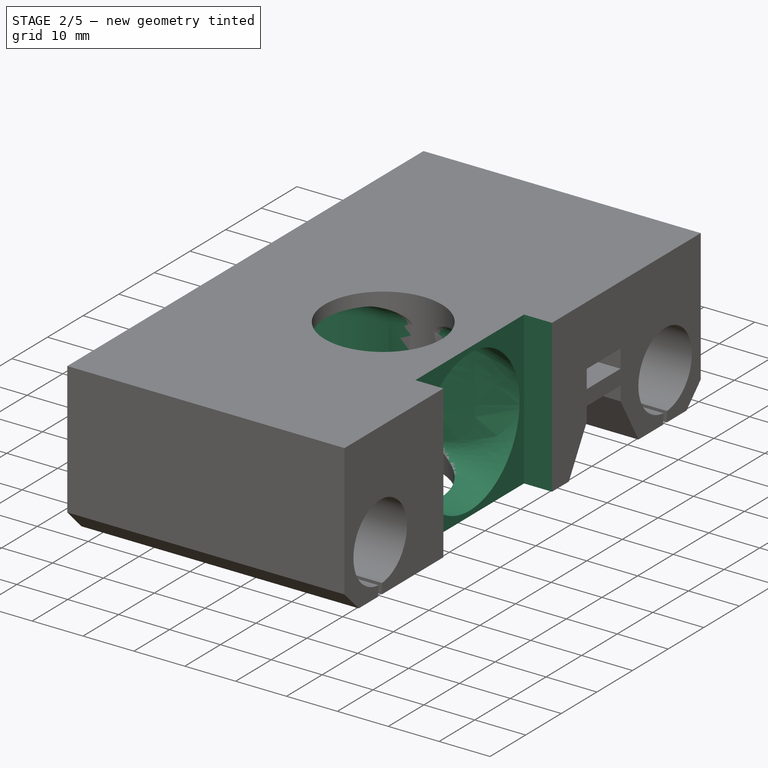
[diagram: stage 2 of 5 — iso view after this stage's code; geometry added in this stage tinted green]
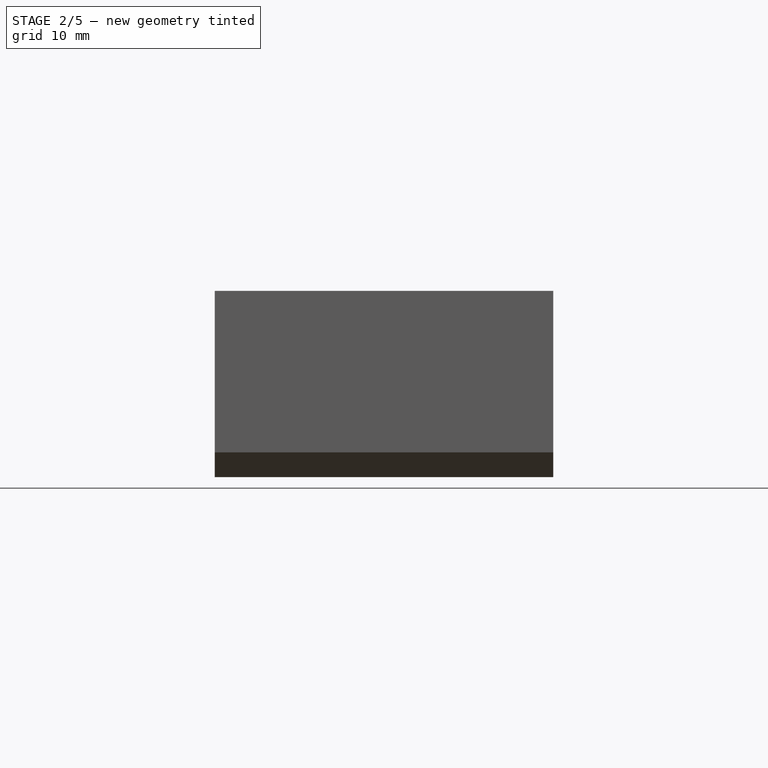
[diagram: stage 2 of 5 — front view after this stage's code; geometry added in this stage tinted green]
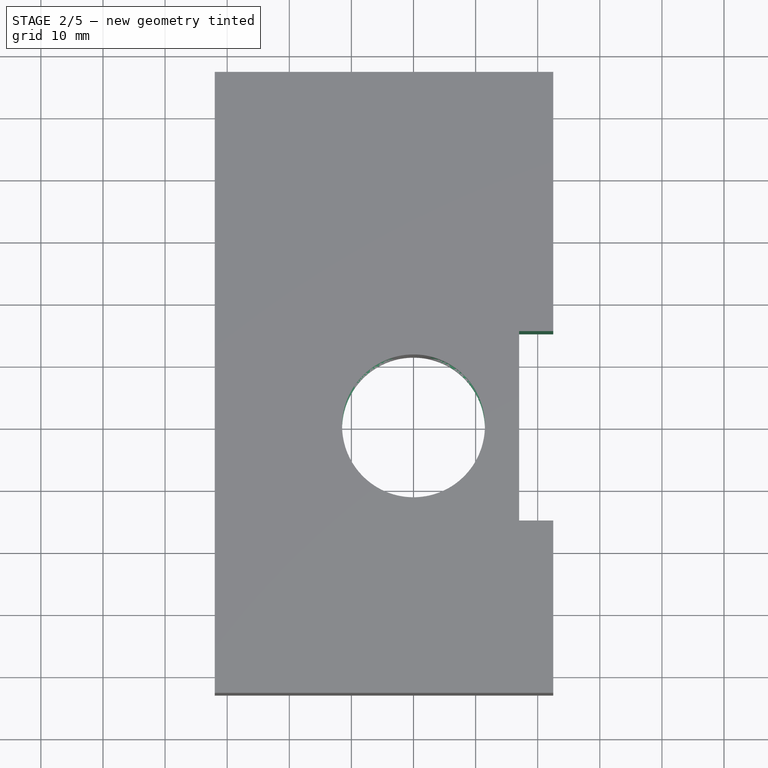
[diagram: stage 2 of 5 — top view after this stage's code; geometry added in this stage tinted green]
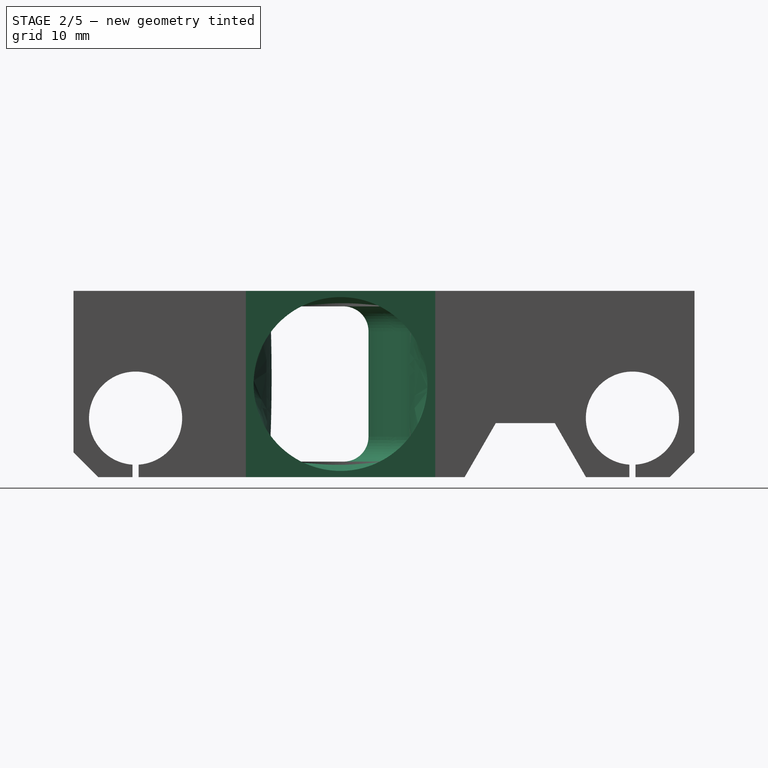
[diagram: stage 2 of 5 — right view after this stage's code; geometry added in this stage tinted green]
FEATURE [PartDesign::Pocket] Pocket001
  BaseFeature = -> Pocket
  Direction = (-1,2e-16,-3e-16)
  Length = 10
  Length2 = 5
  Placement = pos=(0,0,0) rot=(0.57735,0.57735,0.57735;2.0944rad)
  Profile = -> Sketch002
  ReferenceAxis = -> Sketch002 [N_Axis]
  Type = 0
FEATURE [PartDesign::SubtractiveLoft] SubtractiveLoft
  BaseFeature = -> Pocket001
  Closed = true
  Placement = pos=(0,0,0) rot=(0.57735,0.57735,0.57735;2.0944rad)
  Profile = -> Sketch003
  Ruled = false
  Sections = -> [Sketch004,Sketch005]
FEATURE [PartDesign::SubtractivePipe] SubtractivePipe
  AuxilleryCurvelinear = true
  AuxillerySpineTangent = false
  BaseFeature = -> SubtractiveLoft
  Binormal = (0,0,0)
  Mode = 1
  Placement = pos=(0,0,0) rot=(0.57735,0.57735,0.57735;2.0944rad)
  Profile = -> Sketch006
  Spine = -> Sketch007
  SpineTangent = false
  Transformation = 0
  Transition = 0
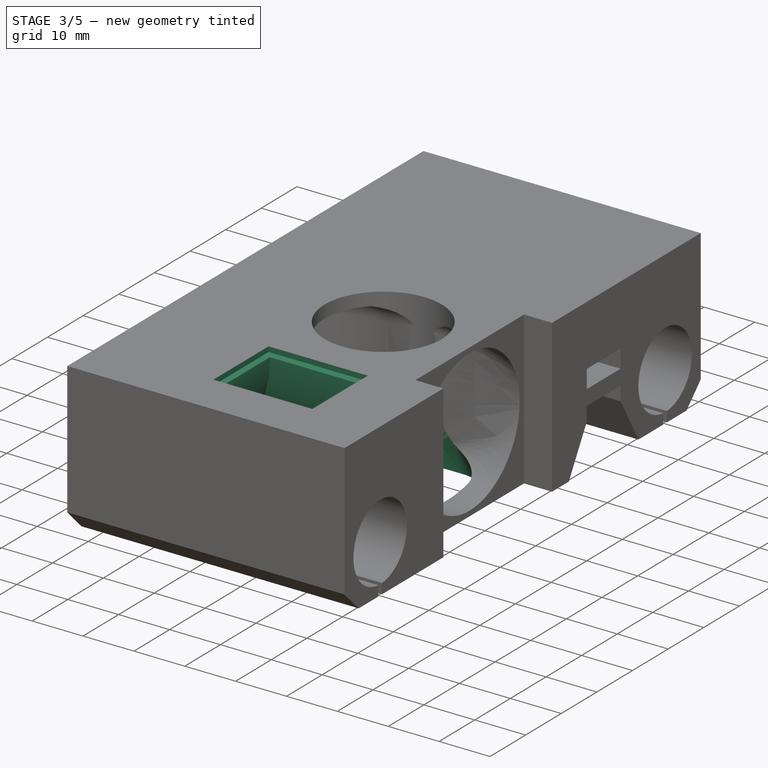
[diagram: stage 3 of 5 — iso view after this stage's code; geometry added in this stage tinted green]
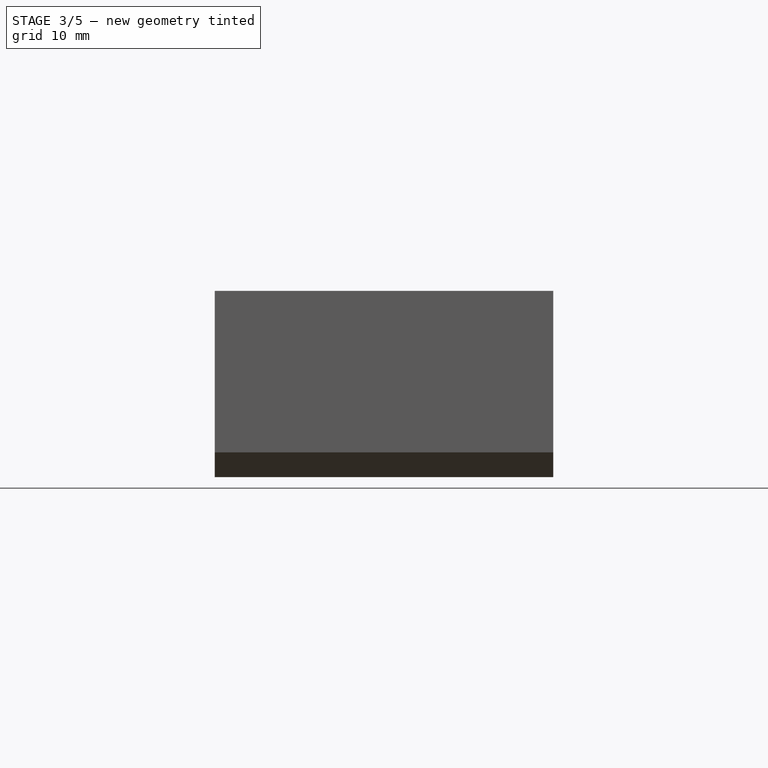
[diagram: stage 3 of 5 — front view after this stage's code; geometry added in this stage tinted green]
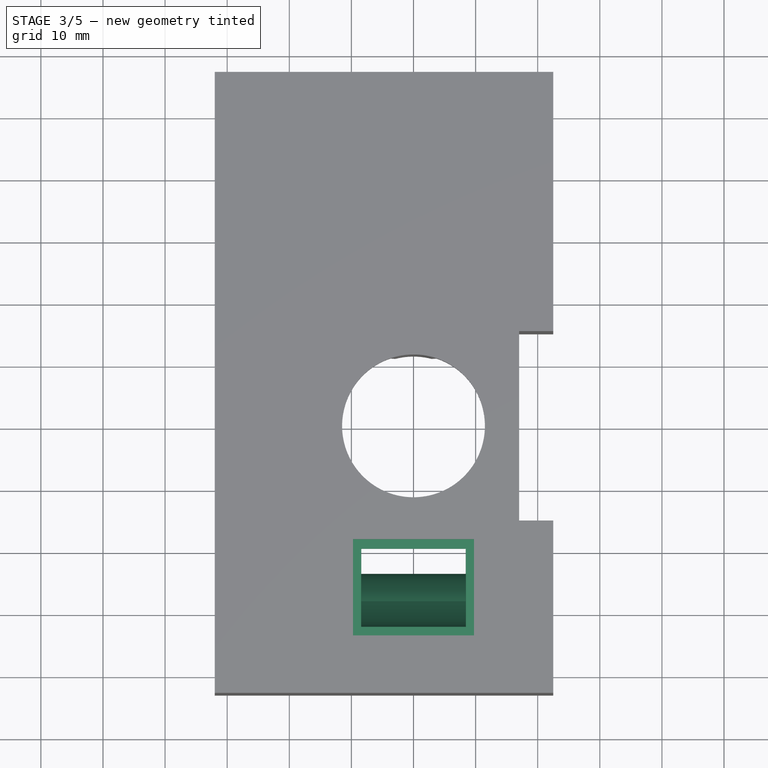
[diagram: stage 3 of 5 — top view after this stage's code; geometry added in this stage tinted green]
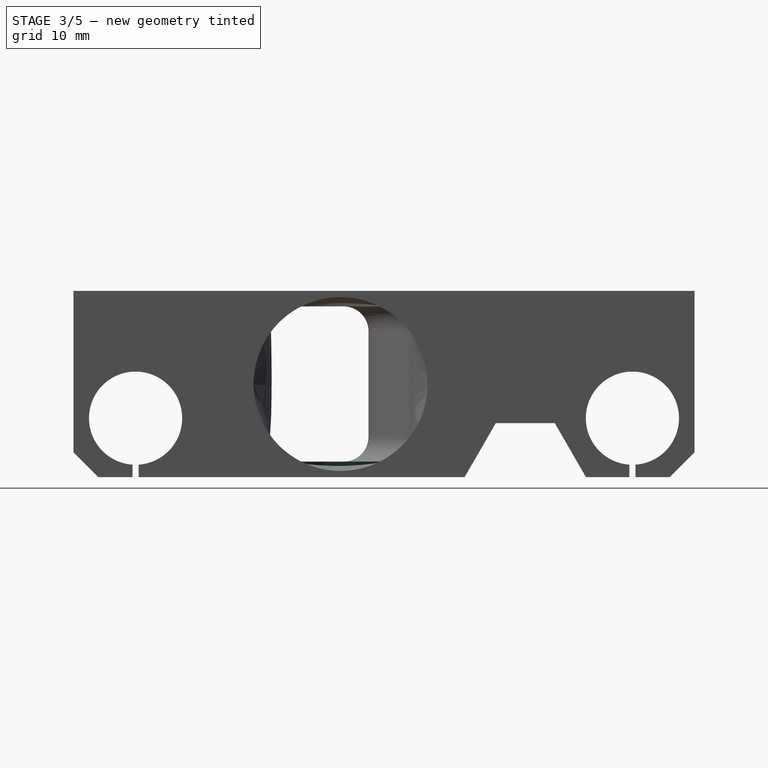
[diagram: stage 3 of 5 — right view after this stage's code; geometry added in this stage tinted green]
FEATURE [PartDesign::SubtractiveLoft] SubtractiveLoft001
  BaseFeature = -> SubtractivePipe
  Closed = false
  Placement = pos=(0,0,0) rot=(0.57735,0.57735,0.57735;2.0944rad)
  Profile = -> Sketch008
  Ruled = false
  Sections = -> [Sketch009]
FEATURE [PartDesign::Pocket] Pocket002
  BaseFeature = -> SubtractiveLoft001
  Direction = (0,0,-1)
  Length = 5
  Length2 = 5
  Placement = pos=(0,0,0) rot=(0.57735,0.57735,0.57735;2.0944rad)
  Profile = -> Sketch010
  ReferenceAxis = -> Sketch010 [N_Axis]
  Type = 1
FEATURE [PartDesign::SubtractivePipe] SubtractivePipe001
  AuxilleryCurvelinear = true
  AuxillerySpineTangent = false
  BaseFeature = -> Pocket002
  Binormal = (0,0,0)
  Mode = 0
  Placement = pos=(0,0,0) rot=(0.57735,0.57735,0.57735;2.0944rad)
  Profile = -> Sketch012
  Sections = -> [Sketch015,Sketch014,Sketch011]
  Spine = -> Sketch013
  SpineTangent = false
  Transformation = 1
  Transition = 0
FEATURE [PartDesign::Pocket] Pocket005
  BaseFeature = -> SubtractivePipe001
  Direction = (0,0,-1)
  Length = 1
  Length2 = 5
  Placement = pos=(0,0,0) rot=(0.57735,0.57735,0.57735;2.0944rad)
  Profile = -> Sketch018
  ReferenceAxis = -> Sketch018 [N_Axis]
  Type = 0
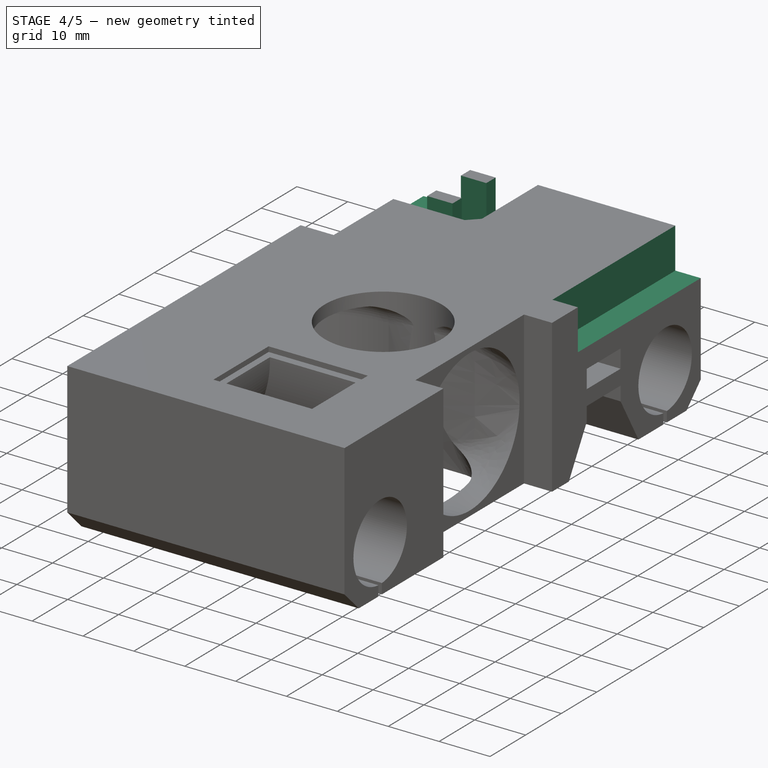
[diagram: stage 4 of 5 — iso view after this stage's code; geometry added in this stage tinted green]
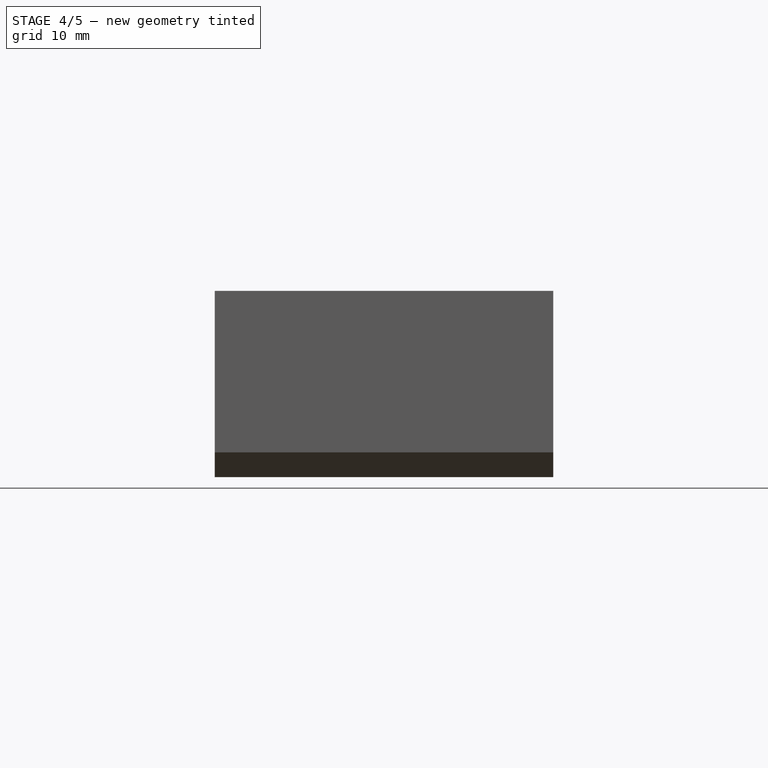
[diagram: stage 4 of 5 — front view after this stage's code; geometry added in this stage tinted green]
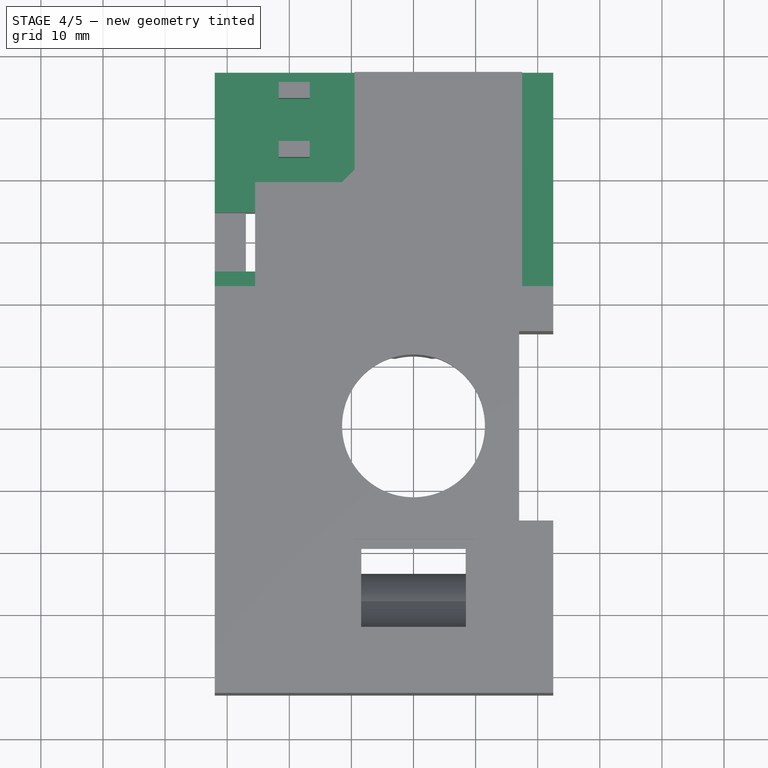
[diagram: stage 4 of 5 — top view after this stage's code; geometry added in this stage tinted green]
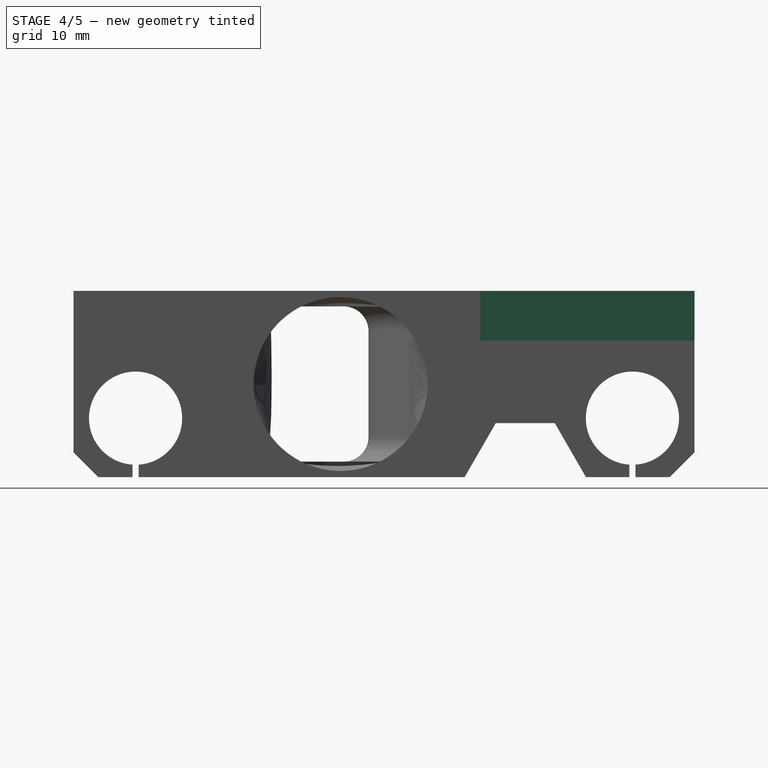
[diagram: stage 4 of 5 — right view after this stage's code; geometry added in this stage tinted green]
FEATURE [PartDesign::Pocket] Pocket003
  BaseFeature = -> Pocket005
  Direction = (0,0,-1)
  Length = 3
  Length2 = 5
  Placement = pos=(0,0,0) rot=(0.57735,0.57735,0.57735;2.0944rad)
  Profile = -> Sketch016
  ReferenceAxis = -> Sketch016 [N_Axis]
  Type = 1
FEATURE [Sketcher::SketchObject] Sketch021
  AttachmentOffset = pos=(0,0,-21.3) rot=(0,0,1;0rad)
  FullyConstrained = true
  MapMode = 5
  Placement = pos=(0,0,-21.3) rot=(0,0,1;0rad)
  Support = -> [XY_Plane003]
  sketch-geometry (4):
    g0: LineSegment StartX=-33 StartY=25 StartZ=0 EndX=-33 EndY=16 EndZ=0
    g1: LineSegment StartX=-18 StartY=25 StartZ=0 EndX=-33 EndY=25 EndZ=0
    g2: LineSegment StartX=-18 StartY=25 StartZ=0 EndX=-18 EndY=16 EndZ=0
    g3: LineSegment StartX=-33 StartY=16 StartZ=0 EndX=-18 EndY=16 EndZ=0
  constraints (12):
    c: Vertical(g0)
    c: Horizontal(g1)
    c: DistanceY(g-1,g1) = 25
    c: Vertical(g2)
    c: DistanceX(g0,g-1) = 33
    c: Coincident(g0,g1)
    c: Coincident(g2,g1)
    c: Coincident(g3,g0)
    c: Coincident(g3,g2)
    c: Horizontal(g3)
    c: DistanceX(g2,g-1) = 18
    c: DistanceY(g0,g0) = 9
FEATURE [PartDesign::Pocket] Pocket008
  BaseFeature = -> Pocket003
  Direction = (0,0,-1)
  Length = 5
  Length2 = 5
  Placement = pos=(0,0,0) rot=(0.57735,0.57735,0.57735;2.0944rad)
  Profile = -> Sketch021
  ReferenceAxis = -> Sketch021 [N_Axis]
  Type = 1
FEATURE [PartDesign::Pocket] Pocket009
  BaseFeature = -> Pocket008
  Direction = (0,0,-1)
  Length = 8
  Length2 = 5
  Placement = pos=(0,0,0) rot=(0.57735,0.57735,0.57735;2.0944rad)
  Profile = -> Sketch019
  ReferenceAxis = -> Sketch019 [N_Axis]
  Type = 0
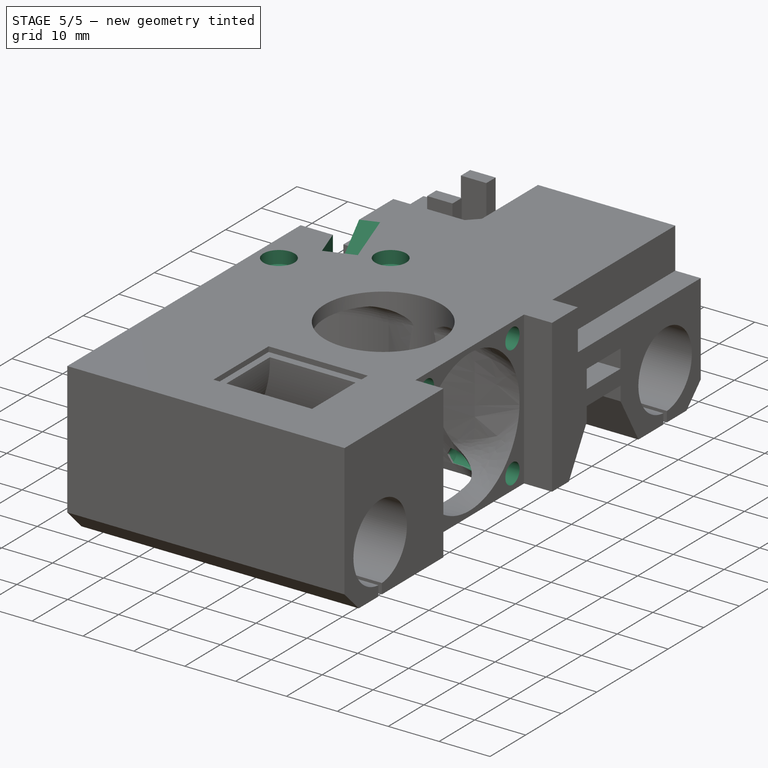
[diagram: stage 5 of 5 — iso view after this stage's code; geometry added in this stage tinted green]
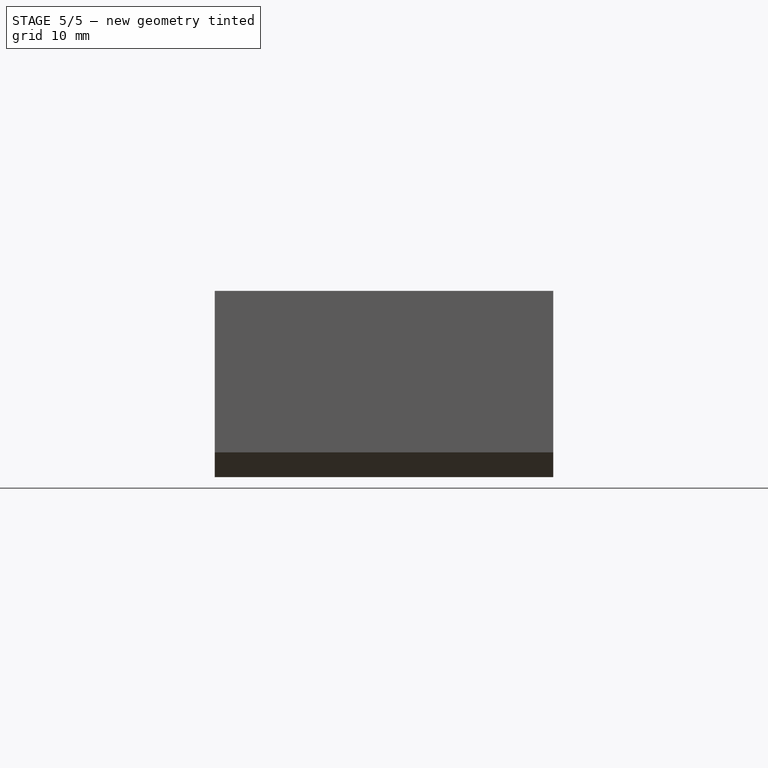
[diagram: stage 5 of 5 — front view after this stage's code; geometry added in this stage tinted green]
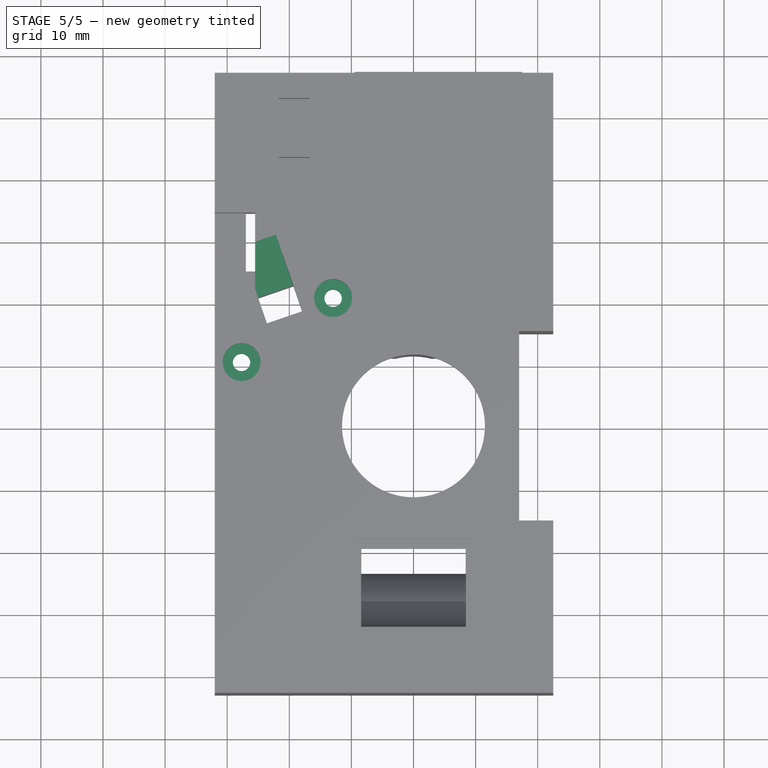
[diagram: stage 5 of 5 — top view after this stage's code; geometry added in this stage tinted green]
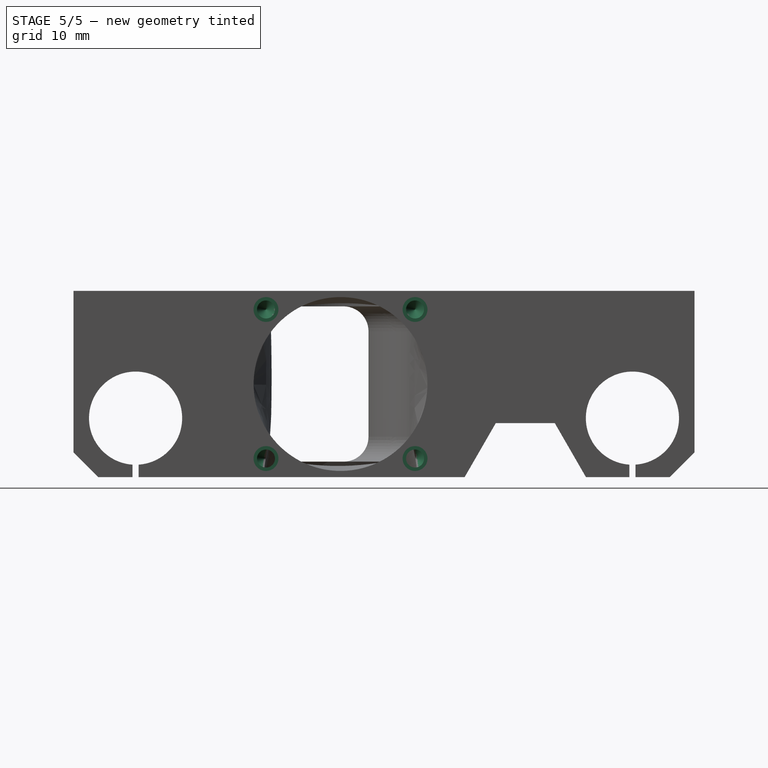
[diagram: stage 5 of 5 — right view after this stage's code; geometry added in this stage tinted green]
FEATURE [Part::Feature] Compound009  label="nema17-stepper-motor_38mm_002"
  Placement = pos=(-4,24.5,21) rot=(0.57735,-0.57735,0.57735;2.0944rad)
  shape: bbox 42 x 61.2 x 54 mm, 83 faces, 8 solids (baked)
FEATURE [App::Part] Part  label="BuyedParts"
  Group = -> [Assembly,Part001,Compound003,Compound004,Compound002,Compound005,Fusion001,Part__Feature001001,Compound009,Carriage001001001,Body001,Body001002]
  Origin = -> Origin
FEATURE [PartDesign::Plane] DatumPlane
  AttachmentOffset = pos=(0,0,0) rot=(0,1,0;0.872665rad)
  Length = 142.526
  MapMode = 5
  Placement = pos=(-9.0531,26.3353,-2.5e-15) rot=(0.568344,0.796363,-0.20686;2.57735rad)
  ResizeMode = 0
  Support = -> [Pocket009]
  Width = 106.947
FEATURE [Sketcher::SketchObject] Sketch022
  FullyConstrained = true
  MapMode = 5
  Placement = pos=(-9.0531,26.3353,-1.8e-15) rot=(0.568344,0.796363,-0.20686;2.57735rad)
  Support = -> [DatumPlane]
  sketch-geometry (4):
    g0: LineSegment StartX=-3.5 StartY=-10.95 StartZ=0 EndX=6.5 EndY=-10.95 EndZ=0
    g1: LineSegment StartX=6.5 StartY=-10.95 StartZ=0 EndX=6.5 EndY=-16.95 EndZ=0
    g2: LineSegment StartX=6.5 StartY=-16.95 StartZ=0 EndX=-3.5 EndY=-16.95 EndZ=0
    g3: LineSegment StartX=-3.5 StartY=-16.95 StartZ=0 EndX=-3.5 EndY=-10.95 EndZ=0
  constraints (12):
    c: Coincident(g0,g1)
    c: Coincident(g1,g2)
    c: Coincident(g2,g3)
    c: Coincident(g3,g0)
    c: Horizontal(g0)
    c: Horizontal(g2)
    c: Vertical(g1)
    c: Vertical(g3)
    c: DistanceY(g1,g1) = 6
    c: DistanceX(g2,g2) = 10
    c: DistanceX(g0,g-1) = 3.5
    c: DistanceY(g0,g-1) = 10.95
FEATURE [PartDesign::Pocket] Pocket010
  BaseFeature = -> Pocket009
  Direction = (-0.208964,0.607873,0.766044)
  Length = 22
  Length2 = 5
  Midplane = true
  Placement = pos=(0,0,0) rot=(0.57735,0.57735,0.57735;2.0944rad)
  Profile = -> Sketch022
  ReferenceAxis = -> Sketch022 [N_Axis]
  Type = 0
FEATURE [Sketcher::SketchObject] Sketch023
  FullyConstrained = true
  MapMode = 5
  Support = -> [XY_Plane003]
  sketch-geometry (4):
    g0: Circle CenterX=-12.9456 CenterY=20.5872 CenterZ=0 NormalX=0 NormalY=0 NormalZ=1 AngleXU=0 Radius=1.4
    g1: Circle CenterX=-27.6904 CenterY=10.2628 CenterZ=0 NormalX=0 NormalY=0 NormalZ=1 AngleXU=0 Radius=1.4
    g2: LineSegment StartX=-27.6904 StartY=10.2628 StartZ=0 EndX=-12.9456 EndY=20.5872 EndZ=0
    g3: GeomPoint X=-20.318 Y=15.425 Z=0
  constraints (9):
    c: Coincident(g2,g1)
    c: Coincident(g2,g0)
    c: Distance(g2) = 18
    c: DistanceX(g3,g-1) = 20.318
    c: DistanceY(g-1,g3) = 15.425
    c: Symmetric(g1,g0,g3)
    c: Angle(g-1,g2) = 0.610865
    c: Equal(g1,g0)
    c: Diameter(g0) = 2.8
FEATURE [PartDesign::Hole] Hole
  BaseFeature = -> Pocket010
  CustomThreadClearance = 0
  Depth = 237.899
  DepthType = 1
  Diameter = 2.8
  DrillForDepth = false
  DrillPoint = 1
  DrillPointAngle = 118
  HoleCutCountersinkAngle = 90
  HoleCutCustomValues = false
  HoleCutDepth = 2.5
  HoleCutDiameter = 6.1
  HoleCutType = 1
  ModelThread = false
  Placement = pos=(0,0,0) rot=(0.57735,0.57735,0.57735;2.0944rad)
  Profile = -> Sketch023
  Tapered = false
  TaperedAngle = 90
  ThreadClass = 0
  ThreadDepth = 237.899
  ThreadDepthType = 0
  ThreadDirection = 0
  ThreadFit = 0
  ThreadSize = 0
  ThreadType = 0
  Threaded = false
  UseCustomThreadClearance = false
FEATURE [Sketcher::SketchObject] Sketch024
  AttachmentOffset = pos=(0,0,17) rot=(0,0,1;0rad)
  FullyConstrained = true
  MapMode = 5
  Placement = pos=(17,-3.8e-15,3.8e-15) rot=(0.57735,0.57735,0.57735;2.0944rad)
  Support = -> [YZ_Plane003]
  sketch-geometry (9):
    g0: LineSegment StartX=-12 StartY=-3 StartZ=0 EndX=12 EndY=-3 EndZ=0
    g1: LineSegment StartX=12 StartY=-3 StartZ=0 EndX=12 EndY=-27 EndZ=0
    g2: LineSegment StartX=12 StartY=-27 StartZ=0 EndX=-12 EndY=-27 EndZ=0
    g3: LineSegment StartX=-12 StartY=-27 StartZ=0 EndX=-12 EndY=-3 EndZ=0
    g4: GeomPoint X=0 Y=-15 Z=0
    g5: Circle CenterX=-12 CenterY=-3 CenterZ=0 NormalX=0 NormalY=0 NormalZ=1 AngleXU=0 Radius=2
    g6: Circle CenterX=12 CenterY=-3 CenterZ=0 NormalX=0 NormalY=0 NormalZ=1 AngleXU=0 Radius=2
    g7: Circle CenterX=12 CenterY=-27 CenterZ=0 NormalX=0 NormalY=0 NormalZ=1 AngleXU=0 Radius=2
    g8: Circle CenterX=-12 CenterY=-27 CenterZ=0 NormalX=0 NormalY=0 NormalZ=1 AngleXU=0 Radius=2
  constraints (21):
    c: Coincident(g0,g1)
    c: Coincident(g1,g2)
    c: Coincident(g2,g3)
    c: Coincident(g3,g0)
    c: Horizontal(g0)
    c: Horizontal(g2)
    c: Vertical(g1)
    c: Vertical(g3)
    c: Equal(g2,g3)
    c: Symmetric(g0,g2,g4)
    c: PointOnObject(g4,g-2)
    c: DistanceY(g4,g-1) = 15
    c: DistanceX(g0,g0) = 24
    c: Coincident(g5,g0)
    c: Coincident(g6,g0)
    c: Coincident(g7,g1)
    c: Coincident(g8,g2)
    c: Equal(g8,g7)
    c: Equal(g7,g6)
    c: Equal(g6,g5)
    c: Diameter(g7) = 4
FEATURE [PartDesign::Hole] Hole001
  BaseFeature = -> Hole
  CustomThreadClearance = 0
  Depth = 12
  DepthType = 0
  Diameter = 2.9
  DrillForDepth = false
  DrillPoint = 1
  DrillPointAngle = 118
  HoleCutCountersinkAngle = 90
  HoleCutCustomValues = false
  HoleCutDepth = 5
  HoleCutDiameter = 4
  HoleCutType = 1
  ModelThread = false
  Placement = pos=(0,0,0) rot=(0.57735,0.57735,0.57735;2.0944rad)
  Profile = -> Sketch024
  Tapered = false
  TaperedAngle = 90
  ThreadClass = 0
  ThreadDepth = 12
  ThreadDepthType = 0
  ThreadDirection = 0
  ThreadFit = 0
  ThreadSize = 0
  ThreadType = 0
  Threaded = false
  UseCustomThreadClearance = false
FEATURE [PartDesign::Body] Body
  Group = -> [Sketch,Pad,Pocket007,Sketch001,Pocket,Sketch002,Pocket001,Sketch003,Sketch004,Sketch005,Sketch006,SubtractiveLoft,Sketch007,SubtractivePipe,Sketch008,Sketch009,SubtractiveLoft001,Sketch010,Pocket002,Sketch011,Sketch012,Sketch013,Sketch014,Sketch015,SubtractivePipe001,Sketch018,Sketch016,Pocket005,Pocket003,Sketch019,Sketch020,Sketch021,Pocket008,Pocket009,DatumPlane,Sketch022,Pocket010,Sketch023,+3 more]
  Origin = -> Origin003
  Tip = -> Hole001
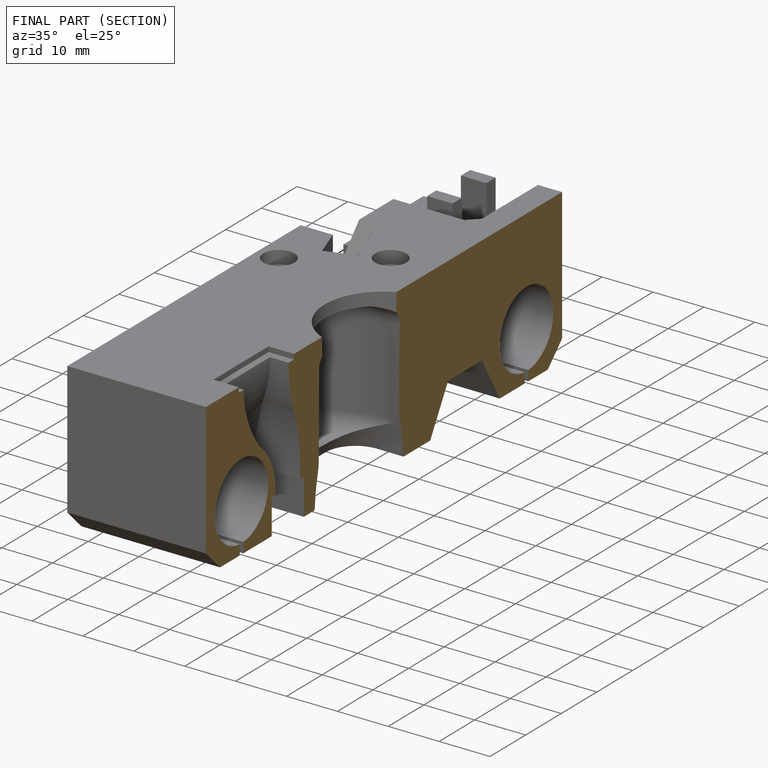
[diagram: finished part — half-section view (interior)]
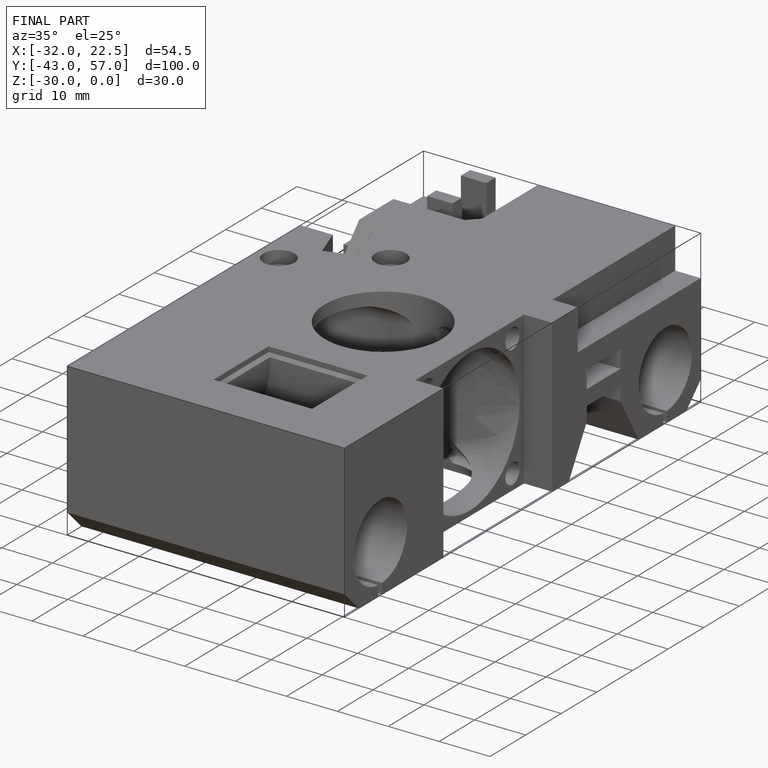
[diagram: finished part — iso view with bounding-box wireframe]
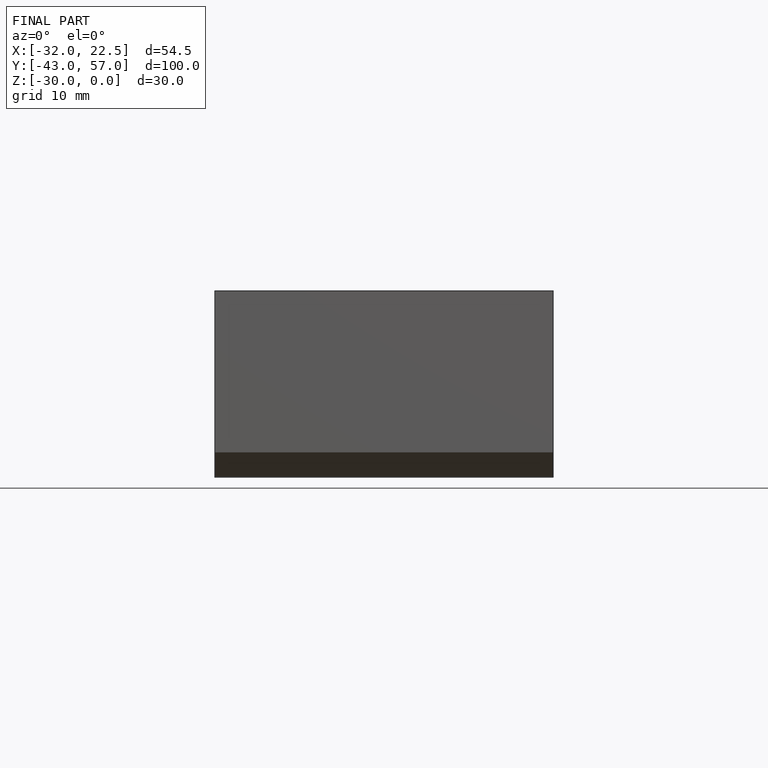
[diagram: finished part — front view with bounding-box wireframe]
